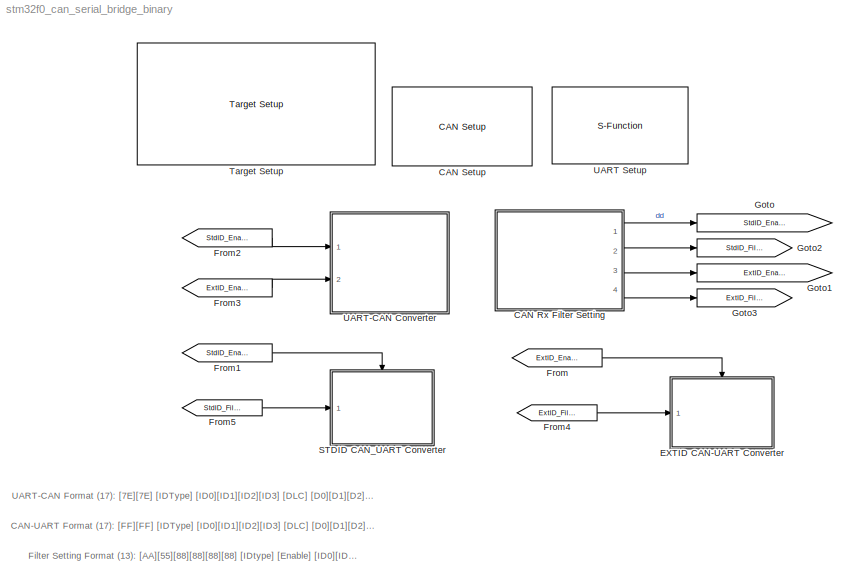
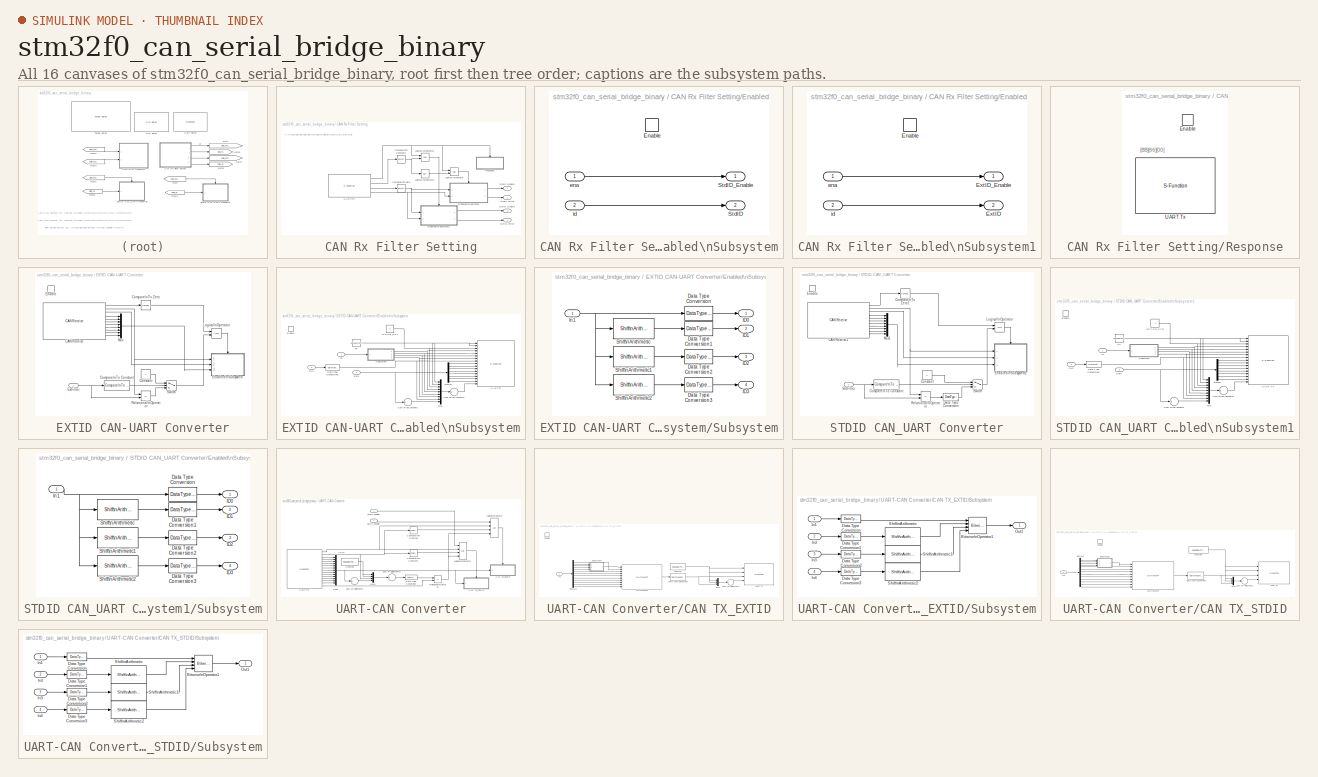
[diagram: thumbnail index - all 16 canvases of the model, root first then tree order]
MODEL stm32f0_can_serial_bridge_binary
KIND model
CONFIG PreLoadFcn = waijung.modelPreload; % Required for working with Waijung Blockset. Do not remove.
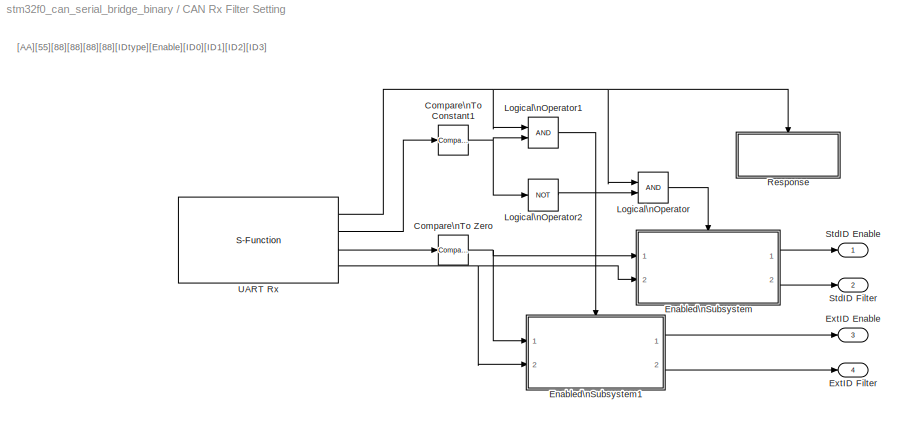
BLOCK [SubSystem] CAN Rx Filter Setting
  FunctionWithSeparateData = off
  MaskHideContents = off
  MinAlgLoopOccurrences = off
  Opaque = off
  Ports = [0, 4]
  PropExecContextOutsideSubsystem = off
  RTWSystemCode = Auto
  RequestExecContextInheritance = off
BLOCK [Reference] CAN Rx Filter Setting/Compare\nTo Constant1  REF=simulink/Logic and Bit\nOperations/Compare\nTo Constant
  FunctionWithSeparateData = off
  LogicOutDataTypeMode = uint8
  Ports = [1, 1]
  RTWMemSecDataConstants = Inherit from model
  RTWMemSecDataInternal = Inherit from model
  RTWMemSecDataParameters = Inherit from model
  RTWMemSecFuncExecute = Inherit from model
  RTWMemSecFuncInitTerm = Inherit from model
  ShowPortLabels = FromPortIcon
  SourceBlock = simulink/Logic and Bit\nOperations/Compare\nTo Constant
  SourceType = Compare To Constant
  SystemSampleTime = -1
  ZeroCross = off
  const = 0
  relop = ==
BLOCK [Reference] CAN Rx Filter Setting/Compare\nTo Zero  REF=simulink/Logic and Bit\nOperations/Compare\nTo Zero
  FunctionWithSeparateData = off
  LogicOutDataTypeMode = uint8
  Ports = [1, 1]
  RTWMemSecDataConstants = Inherit from model
  RTWMemSecDataInternal = Inherit from model
  RTWMemSecDataParameters = Inherit from model
  RTWMemSecFuncExecute = Inherit from model
  RTWMemSecFuncInitTerm = Inherit from model
  ShowPortLabels = FromPortIcon
  SourceBlock = simulink/Logic and Bit\nOperations/Compare\nTo Zero
  SourceType = Compare To Zero
  SystemSampleTime = -1
  ZeroCross = off
  relop = ~=
BLOCK [SubSystem] CAN Rx Filter Setting/Enabled\nSubsystem
  FunctionWithSeparateData = off
  MaskHideContents = off
  MinAlgLoopOccurrences = off
  Opaque = off
  Ports = [2, 2, 1]
  PropExecContextOutsideSubsystem = off
  RTWSystemCode = Auto
  RequestExecContextInheritance = off
  TreatAsAtomicUnit = on
BLOCK [EnablePort] CAN Rx Filter Setting/Enabled\nSubsystem/Enable
  Ports = []
BLOCK [Outport] CAN Rx Filter Setting/Enabled\nSubsystem/StdID
  IconDisplay = Port number
  InitialOutput = 2^32-1
  OutDataType = fixdt(1, 16)
  OutScaling = 2^0
  Port = 2
BLOCK [Outport] CAN Rx Filter Setting/Enabled\nSubsystem/StdID_Enable
  IconDisplay = Port number
  InitialOutput = 0
  OutDataType = fixdt(1, 16)
  OutScaling = 2^0
BLOCK [Inport] CAN Rx Filter Setting/Enabled\nSubsystem/ena
  IconDisplay = Port number
  OutDataType = fixdt(1, 16)
  OutScaling = 2^0
BLOCK [Inport] CAN Rx Filter Setting/Enabled\nSubsystem/id
  IconDisplay = Port number
  OutDataType = fixdt(1, 16)
  OutScaling = 2^0
  Port = 2
BLOCK [SubSystem] CAN Rx Filter Setting/Enabled\nSubsystem1
  FunctionWithSeparateData = off
  MaskHideContents = off
  MinAlgLoopOccurrences = off
  Opaque = off
  Ports = [2, 2, 1]
  PropExecContextOutsideSubsystem = off
  RTWSystemCode = Auto
  RequestExecContextInheritance = off
  TreatAsAtomicUnit = on
BLOCK [EnablePort] CAN Rx Filter Setting/Enabled\nSubsystem1/Enable
  Ports = []
BLOCK [Outport] CAN Rx Filter Setting/Enabled\nSubsystem1/ExtID
  IconDisplay = Port number
  InitialOutput = 2^32-1
  OutDataType = fixdt(1, 16)
  OutScaling = 2^0
  Port = 2
BLOCK [Outport] CAN Rx Filter Setting/Enabled\nSubsystem1/ExtID_Enable
  IconDisplay = Port number
  InitialOutput = 0
  OutDataType = fixdt(1, 16)
  OutScaling = 2^0
BLOCK [Inport] CAN Rx Filter Setting/Enabled\nSubsystem1/ena
  IconDisplay = Port number
  OutDataType = fixdt(1, 16)
  OutScaling = 2^0
BLOCK [Inport] CAN Rx Filter Setting/Enabled\nSubsystem1/id
  IconDisplay = Port number
  OutDataType = fixdt(1, 16)
  OutScaling = 2^0
  Port = 2
BLOCK [Outport] CAN Rx Filter Setting/ExtID Enable
  IconDisplay = Port number
  OutDataType = fixdt(1, 16)
  OutScaling = 2^0
  Port = 3
BLOCK [Outport] CAN Rx Filter Setting/ExtID Filter
  IconDisplay = Port number
  OutDataType = fixdt(1, 16)
  OutScaling = 2^0
  Port = 4
BLOCK [Logic] CAN Rx Filter Setting/Logical\nOperator
  AllPortsSameDT = off
  LogicDataType = fixdt(0, 8)
  OutDataTypeMode = boolean
  OutDataTypeStr = boolean
  Ports = [2, 1]
BLOCK [Logic] CAN Rx Filter Setting/Logical\nOperator1
  AllPortsSameDT = off
  LogicDataType = fixdt(0, 8)
  OutDataTypeMode = boolean
  OutDataTypeStr = boolean
  Ports = [2, 1]
BLOCK [Logic] CAN Rx Filter Setting/Logical\nOperator2
  AllPortsSameDT = off
  LogicDataType = fixdt(0, 8)
  Operator = NOT
  OutDataTypeMode = boolean
  OutDataTypeStr = boolean
  Ports = [1, 1]
BLOCK [SubSystem] CAN Rx Filter Setting/Response
  FunctionWithSeparateData = off
  MaskHideContents = off
  MinAlgLoopOccurrences = off
  Opaque = off
  Ports = [0, 0, 1]
  PropExecContextOutsideSubsystem = off
  RTWSystemCode = Auto
  RequestExecContextInheritance = off
  TreatAsAtomicUnit = on
BLOCK [EnablePort] CAN Rx Filter Setting/Response/Enable
  Ports = []
BLOCK [S-Function] CAN Rx Filter Setting/Response/UART Tx
  EnableBusSupport = off
  FunctionName = stm32f0_uart
  MaskCallbackString = stm32f0_uart_callback('conf');|stm32f0_uart_callback('uartmodule');|||||||stm32f0_uart_callback('flowcontrol');|||stm32f0_uart_callback('advanceoptions');|||stm32f0_uart_callback('conf');|stm32f0_uart_callback('conf');|stm32f0_uart_callback('binheader');|stm32f0_uart_callback('binterminator');|||||||||stm32f0_uart_callback('asciiformat');|||stm32f0_uart_callback('storagename');|||stm32f0_uart_call...<+176ch>  <repeated x8 — deduplicated; at blocks: UART Tx, UART Rx, UART Setup>
  MaskDescription = UART Module\n - Select module corresponding to \"UART Setup\" block.\nTransfer\n - Blocking: after write DMA buffer, the block wait until buffer empty.\n - Non-Blocking: the block will not wait for buffer empty.\nPacket mode:\n - Ascii: sending data is ascii, Ascii format + End of packet.\n - Binary: sending data is binary format, Header + Data + Terminator\n - String Buffer: Volatile Data Storage...<+256ch>  <repeated x5 — deduplicated; at blocks: UART Tx>
  MaskDisplay = text(0.95, 0.5, 'Module: USART1_Tx\\nPacket: Binary\\nTransfer: Blocking\\nTs (sec): 0.001','ver','middle','hor','right');
  MaskEnableString = on,on,on,on,on,on,on,on,on,off,off,on,on,on,on,on,on,on,on,on,on,on,on,on,on,on,on,on,on,on,on,on,on,on,on,on,on,off,on,on,on,on,on,on,on,on,on,on,on,on
  MaskHelp = web(fullfile(waijungdocroot,'stm32f0_uart_tx.htm'), '-browser')
  MaskIconFrame = on
  MaskIconOpaque = on
  MaskIconRotate = none
  MaskIconUnits = normalized
  MaskInitialization = stm32f0_uart_callback('init');
  MaskPortRotate = default
  MaskPromptString = Configuration|UART Module|Baud rate (bps)|Data bits|Parity|Stop bit|Tx pin|Rx pin|Hardware flow control|HW Flow control, CTS Pin|HW Flow control, RTS Pin|Advance options|Rx buffer size (bytes)|Tx buffer size (bytes)|Transfer|Packet mode|Binary header (example: '7E 7E')|Binary terminator (example: '03 03')|Number of data port, type DOUBLE|Number of data port, type SINGLE|Number of data port, type I...<+631ch>  <repeated x8 — deduplicated; at blocks: UART Tx, UART Rx, UART Setup>
  MaskSelfModifiable = on
  MaskStyleString = popup(Setup|Tx|Rx),popup(1|2|3|4),edit,popup(8),popup(No|Odd|Even),popup(0.5|1|1.5|2),popup(Not used|A9|B6),popup(Not used|A10|B7),popup(None|RTS|CTS|RTS/CTS),popup(Not used|A11),popup(Not used|A12),checkbox,popup(16|32|64|128|256|512),popup(16|32|64|128|256|512),popup(Blocking|Non-Blocking),popup(Ascii|Binary|String Buffer),edit,edit,edit,edit,edit,edit,edit,edit,edit,edit,edit,popup(CR (0x0D - \...<+259ch>  <repeated x8 — deduplicated; at blocks: UART Tx, UART Rx, UART Setup>
  MaskTabNameString = ,,,,,,,,,,,,,,,,,,,,,,,,,,,,,,,,,,,,,,,,,,,,,,,,,
  MaskToolTipString = on,on,on,on,on,on,on,on,on,on,on,on,on,on,on,on,on,on,on,on,on,on,on,on,on,on,on,on,on,on,on,on,on,on,on,on,on,on,on,on,on,on,on,on,on,on,on,on,on,on
  MaskTunableValueString = off,off,off,off,off,off,off,off,off,off,off,off,off,off,off,off,off,off,off,off,off,off,off,off,off,off,off,off,off,off,off,off,off,off,off,off,off,off,off,off,off,off,off,off,off,off,off,off,off,off  <repeated x8 — deduplicated; at blocks: UART Tx, UART Rx, UART Setup>
  MaskType = stm32f0_uart
  MaskValueString = Tx|1|115200|8|No|1|A9|A10|None|Not used|Not used|off|64|64|Blocking|Binary|'BB 66 00'|''|0|0|0|0|0|0|0|0|'%u: CODE: %u'|CR (0x0D - \"\\r\")|CRLF (0x0D 0x0A - \"<path>")|<empty>|||inf|off|de|fff,ff,sdfsd|0|CANRxFilterSettingResponseUARTTx|[]|[]|{}|[]|[]|{}|0|[\"1\", \"1\", \"A\", \"9\", \"1\", \"A\", \"10\", \"0\", \"*\", \"*\", \"0\", \"*\", \"*\", \"1\", \"1\", \"\", \"\", \"115200\", \"8\", \"N...<+115ch>
  MaskVarAliasString = ,,,,,,,,,,,,,,,,,,,,,,,,,,,,,,,,,,,,,,,,,,,,,,,,,
  MaskVariables = conf=&1;uartmodule=&2;baudrate=@3;databits=@4;parity=&5;stopbit=&6;remaptxpin=&7;remaprxpin=&8;flowcontrol=&9;remapctspin=&10;remaprtspin=&11;advanceoptions=@12;rxbuffersize=@13;txbuffersize=@14;transfer=&15;packetmode=&16;binheader=&17;binterminator=&18;porttype_double=@19;porttype_single=@20;porttype_int8=@21;porttype_uint8=@22;porttype_int16=@23;porttype_uint16=@24;porttype_int32=@25;porttype_u...<+445ch>  <repeated x8 — deduplicated; at blocks: UART Tx, UART Rx, UART Setup>
  MaskVisibilityString = off,on,off,off,off,off,off,off,off,off,off,off,off,off,on,on,on,on,on,on,on,on,on,on,on,on,off,off,off,off,off,off,on,on,off,off,off,off,off,off,off,off,off,off,off,off,off,off,off,off  <repeated x6 — deduplicated; at blocks: UART Tx, UART Rx>
  Parameters = conf,inputporttype,inputportwidth,outputporttype,outputportwidth,asciiheader,optionstring,headerstring,terminatorstring,asciidatatypestring,sampletime,blockid
  Ports = []
BLOCK [Outport] CAN Rx Filter Setting/StdID Enable
  IconDisplay = Port number
  OutDataType = fixdt(1, 16)
  OutScaling = 2^0
BLOCK [Outport] CAN Rx Filter Setting/StdID Filter
  IconDisplay = Port number
  OutDataType = fixdt(1, 16)
  OutScaling = 2^0
  Port = 2
BLOCK [S-Function] CAN Rx Filter Setting/UART Rx
  EnableBusSupport = off
  FunctionName = stm32f0_uart
  MaskDescription = UART Module\n - Select module corresponding to \"UART Setup\" block.\nTransfer\n - Blocking: the block wait until data receiving is ready.\n - Non-Blocking: if data receiving is ready, the block return non-zero to READY port otherwise return 0.\nPacket mode:\n - Ascii: receiving data is ascii, Ascii format + End of packet.\n - Binary: receiving data is binary format, Header + Data + Terminator\n -...<+199ch>
  MaskDisplay = text(0.05, 0.5, 'Module: USART1_Rx\\nPacket: Binary\\nTransfer: Non-Blocking\\nTs (sec): 0.001','ver','middle','hor','left'); port_label('output', 1,'READY'); port_label('output', 2,'IDtype'); port_label('output', 3,'Enable'); port_label('output', 4,'ID');
  MaskEnableString = on,on,on,on,on,on,on,on,on,off,off,on,on,on,on,on,on,on,on,on,on,on,on,on,on,on,on,on,on,on,on,on,on,on,on,on,on,off,on,on,on,on,on,on,on,on,on,on,on,on
  MaskHelp = web(fullfile(waijungdocroot,'stm32f0_uart_rx.htm'), '-browser')
  MaskIconFrame = on
  MaskIconOpaque = on
  MaskIconRotate = none
  MaskIconUnits = normalized
  MaskInitialization = stm32f0_uart_callback('init');
  MaskPortRotate = default
  MaskSelfModifiable = on
  MaskTabNameString = ,,,,,,,,,,,,,,,,,,,,,,,,,,,,,,,,,,,,,,,,,,,,,,,,,
  MaskToolTipString = on,on,on,on,on,on,on,on,on,on,on,on,on,on,on,on,on,on,on,on,on,on,on,on,on,on,on,on,on,on,on,on,on,on,on,on,on,on,on,on,on,on,on,on,on,on,on,on,on,on
  MaskType = stm32f0_uart
  MaskValueString = Rx|1|115200|8|No|1|A9|A10|None|Not used|Not used|off|64|64|Non-Blocking|Binary|'AA 55 88 88 88 88'|''|0|0|0|2|0|0|0|1|'cantx,extid=%u,dlc=%x,data=%x,%x,%x,%x,%x,%x,%x,%x'|CRLF (0x0D 0x0A - \"<path>")|LF (0x0A - \"\\n\")|<empty>|||inf|on|de|IDtype,Enable,ID|0|CANRxFilterSettingUARTRx|[]|[]|{}|[3 3 3 7]|[]|{'READY' 'IDtype' 'Enable' 'ID'}|0|[\"1\", \"1\", \"A\", \"9\", \"1\", \"A\", \"10\", \"0\", ...<+227ch>
  MaskVarAliasString = ,,,,,,,,,,,,,,,,,,,,,,,,,,,,,,,,,,,,,,,,,,,,,,,,,
  MaskVisibilityString = off,on,off,off,off,off,off,off,off,off,off,off,off,off,on,on,on,on,on,on,on,on,on,on,on,on,off,off,off,off,off,off,on,on,off,on,off,off,off,off,off,off,off,off,off,off,off,off,off,off
  Parameters = conf,inputporttype,inputportwidth,outputporttype,outputportwidth,asciiheader,optionstring,headerstring,terminatorstring,asciidatatypestring,sampletime,blockid
  Ports = [0, 4]
BLOCK [Reference] CAN Setup  REF=stm32f0_can_lib/CAN Setup
  Ports = []
  SourceBlock = stm32f0_can_lib/CAN Setup
  SourceType = stm32f0_can
  advance = on
  autoretransmission = Enable
  bitrate = 250000
  bitrate_select = 250000
  blockid = CANSetup
  brp = 8
  bs1 = 15tq
  bs2 = 8tq
  canmodule = 1
  compat = 0
  conf = Setup
  confstr = [\"250000\",\"8\",\"B\",\"9\",\"B\",\"8\",\"1tq\",\"15tq\",\"8tq\",\"DISABLE\"]
  inputarray = []
  inputlabelarray = {}
  lastmodule = 1
  outputarray = []
  outputlabelarray = {}
  presc = 8
  remaprxpin = B8
  remaptxpin = B9
  rxpinstr = 8
  rxportstr = B
  sampletime = -1
  sampletimestr = 0.001
  sjw = 1tq
  timingconf = Prescaler
  tq = 1.6667e-007
  txpinstr = 9
  txportstr = B
BLOCK [SubSystem] EXTID CAN-UART Converter
  FunctionWithSeparateData = off
  MaskHideContents = off
  MinAlgLoopOccurrences = off
  Opaque = off
  Ports = [1, 0, 1]
  PropExecContextOutsideSubsystem = off
  RTWSystemCode = Auto
  RequestExecContextInheritance = off
BLOCK [Reference] EXTID CAN-UART Converter/CAN Receive  REF=stm32f0_can_lib/CAN Receive
  Ports = [0, 11]
  SourceBlock = stm32f0_can_lib/CAN Receive
  SourceType = stm32f0_can
  blockid = EXTIDCANUARTConverterCANReceive
  buffersize = 8
  canmodule = 1
  compat = 0
  conf = Rx
  confstr = [\"Extended\",\"Mask\",\"0\",\"0\",\"on\",\"uint8\",\"uint8\",\"uint8\",\"uint8\",\"uint8\",\"uint8\",\"uint8\",\"uint8\",\"8\",\"0\",\"4\",\"0\",\"4\"]
  data0type = uint8
  data1type = uint8
  data2type = uint8
  data3type = uint8
  data4type = uint8
  data5type = uint8
  data6type = uint8
  data7type = uint8
  datatype = single
  enableisr = off
  filtertype = Mask
  id = 0
  idmask = 0
  idtype = Extended
  inputarray = []
  inputlabelarray = {}
  outputarray = [ 5, 7, 3, 3, 3, 3, 3, 3, 3, 3, 3]
  outputlabelarray = { 'Msg Pending','ID','DLC', 'D0 (uint8)', 'D1 (uint8)', 'D2 (uint8)', 'D3 (uint8)', 'D4 (uint8)', 'D5 (uint8)', 'D6 (uint8)', 'D7 (uint8)' }
  sampletime = inf
  sampletimestr = 0.001
  usedlc = on
BLOCK [Reference] EXTID CAN-UART Converter/Compare\nTo Constant  REF=simulink/Logic and Bit\nOperations/Compare\nTo Constant
  FunctionWithSeparateData = off
  LogicOutDataTypeMode = uint8
  Ports = [1, 1]
  RTWMemSecDataConstants = Inherit from model
  RTWMemSecDataInternal = Inherit from model
  RTWMemSecDataParameters = Inherit from model
  RTWMemSecFuncExecute = Inherit from model
  RTWMemSecFuncInitTerm = Inherit from model
  ShowPortLabels = FromPortIcon
  SourceBlock = simulink/Logic and Bit\nOperations/Compare\nTo Constant
  SourceType = Compare To Constant
  SystemSampleTime = -1
  ZeroCross = off
  const = 2^32-1
  relop = ==
BLOCK [Reference] EXTID CAN-UART Converter/Compare\nTo Zero  REF=simulink/Logic and Bit\nOperations/Compare\nTo Zero
  FunctionWithSeparateData = off
  LogicOutDataTypeMode = uint8
  Ports = [1, 1]
  RTWMemSecDataConstants = Inherit from model
  RTWMemSecDataInternal = Inherit from model
  RTWMemSecDataParameters = Inherit from model
  RTWMemSecFuncExecute = Inherit from model
  RTWMemSecFuncInitTerm = Inherit from model
  ShowPortLabels = FromPortIcon
  SourceBlock = simulink/Logic and Bit\nOperations/Compare\nTo Zero
  SourceType = Compare To Zero
  SystemSampleTime = -1
  ZeroCross = off
  relop = ~=
BLOCK [Constant] EXTID CAN-UART Converter/Constant
  OutDataType = fixdt(1, 16)
  OutDataTypeMode = uint8
  OutDataTypeStr = uint8
  OutScaling = 2^0
BLOCK [EnablePort] EXTID CAN-UART Converter/Enable
  Ports = []
BLOCK [SubSystem] EXTID CAN-UART Converter/Enabled\nSubsystem
  FunctionWithSeparateData = off
  MaskHideContents = off
  MinAlgLoopOccurrences = off
  Opaque = off
  Ports = [3, 0, 1]
  PropExecContextOutsideSubsystem = off
  RTWSystemCode = Auto
  RequestExecContextInheritance = off
  TreatAsAtomicUnit = on
BLOCK [Inport] EXTID CAN-UART Converter/Enabled\nSubsystem/DLC
  IconDisplay = Port number
  OutDataType = fixdt(1, 16)
  OutScaling = 2^0
  Port = 2
BLOCK [Inport] EXTID CAN-UART Converter/Enabled\nSubsystem/Data
  IconDisplay = Port number
  OutDataType = fixdt(1, 16)
  OutScaling = 2^0
  Port = 3
BLOCK [DataTypeConversion] EXTID CAN-UART Converter/Enabled\nSubsystem/Data Type Conversion1
  OutDataType = fixdt(1, 16)
  OutScaling = 2^0
  RndMeth = Floor
  SaturateOnIntegerOverflow = off
BLOCK [Demux] EXTID CAN-UART Converter/Enabled\nSubsystem/Demux
  DisplayOption = bar
  Outputs = 8
  Ports = [1, 8]
BLOCK [EnablePort] EXTID CAN-UART Converter/Enabled\nSubsystem/Enable
  Ports = []
BLOCK [Constant] EXTID CAN-UART Converter/Enabled\nSubsystem/FF
  OutDataType = fixdt(1, 16)
  OutDataTypeMode = uint8
  OutDataTypeStr = uint8
  OutScaling = 2^0
  Value = hex2dec('FF')
BLOCK [Inport] EXTID CAN-UART Converter/Enabled\nSubsystem/ID
  IconDisplay = Port number
  OutDataType = fixdt(1, 16)
  OutScaling = 2^0
BLOCK [Constant] EXTID CAN-UART Converter/Enabled\nSubsystem/IDTYPE_EXT
  OutDataType = fixdt(1, 16)
  OutDataTypeMode = uint8
  OutDataTypeStr = uint8
  OutScaling = 2^0
  Value = 0
BLOCK [Mux] EXTID CAN-UART Converter/Enabled\nSubsystem/Mux
  DisplayOption = bar
  Inputs = 9
  Ports = [9, 1]
BLOCK [SubSystem] EXTID CAN-UART Converter/Enabled\nSubsystem/Subsystem
  FunctionWithSeparateData = off
  MaskHideContents = off
  MinAlgLoopOccurrences = off
  Opaque = off
  Ports = [1, 4]
  PropExecContextOutsideSubsystem = off
  RTWSystemCode = Auto
  RequestExecContextInheritance = off
BLOCK [DataTypeConversion] EXTID CAN-UART Converter/Enabled\nSubsystem/Subsystem/Data Type Conversion
  OutDataType = fixdt(1, 16)
  OutDataTypeMode = uint8
  OutDataTypeStr = uint8
  OutScaling = 2^0
  RndMeth = Floor
  SaturateOnIntegerOverflow = off
BLOCK [DataTypeConversion] EXTID CAN-UART Converter/Enabled\nSubsystem/Subsystem/Data Type Conversion1
  OutDataType = fixdt(1, 16)
  OutDataTypeMode = uint8
  OutDataTypeStr = uint8
  OutScaling = 2^0
  RndMeth = Floor
  SaturateOnIntegerOverflow = off
BLOCK [DataTypeConversion] EXTID CAN-UART Converter/Enabled\nSubsystem/Subsystem/Data Type Conversion2
  OutDataType = fixdt(1, 16)
  OutDataTypeMode = uint8
  OutDataTypeStr = uint8
  OutScaling = 2^0
  RndMeth = Floor
  SaturateOnIntegerOverflow = off
BLOCK [DataTypeConversion] EXTID CAN-UART Converter/Enabled\nSubsystem/Subsystem/Data Type Conversion3
  OutDataType = fixdt(1, 16)
  OutDataTypeMode = uint8
  OutDataTypeStr = uint8
  OutScaling = 2^0
  RndMeth = Floor
  SaturateOnIntegerOverflow = off
BLOCK [Outport] EXTID CAN-UART Converter/Enabled\nSubsystem/Subsystem/ID0
  IconDisplay = Port number
  OutDataType = fixdt(1, 16)
  OutScaling = 2^0
BLOCK [Outport] EXTID CAN-UART Converter/Enabled\nSubsystem/Subsystem/ID1
  IconDisplay = Port number
  OutDataType = fixdt(1, 16)
  OutScaling = 2^0
  Port = 2
BLOCK [Outport] EXTID CAN-UART Converter/Enabled\nSubsystem/Subsystem/ID2
  IconDisplay = Port number
  OutDataType = fixdt(1, 16)
  OutScaling = 2^0
  Port = 3
BLOCK [Outport] EXTID CAN-UART Converter/Enabled\nSubsystem/Subsystem/ID3
  IconDisplay = Port number
  OutDataType = fixdt(1, 16)
  OutScaling = 2^0
  Port = 4
BLOCK [Inport] EXTID CAN-UART Converter/Enabled\nSubsystem/Subsystem/In1
  IconDisplay = Port number
  OutDataType = fixdt(1, 16)
  OutScaling = 2^0
BLOCK [Reference] EXTID CAN-UART Converter/Enabled\nSubsystem/Subsystem/Shift\nArithmetic  REF=simulink/Logic and Bit\nOperations/Shift\nArithmetic
  FunctionWithSeparateData = off
  Ports = [1, 1]
  RTWMemSecDataConstants = Inherit from model
  RTWMemSecDataInternal = Inherit from model
  RTWMemSecDataParameters = Inherit from model
  RTWMemSecFuncExecute = Inherit from model
  RTWMemSecFuncInitTerm = Inherit from model
  ShowPortLabels = FromPortIcon
  SourceBlock = simulink/Logic and Bit\nOperations/Shift\nArithmetic
  SourceType = Shift Arithmetic
  SystemSampleTime = -1
  nBinPtShiftRight = 0
  nBitShiftRight = 8
BLOCK [Reference] EXTID CAN-UART Converter/Enabled\nSubsystem/Subsystem/Shift\nArithmetic1  REF=simulink/Logic and Bit\nOperations/Shift\nArithmetic
  FunctionWithSeparateData = off
  Ports = [1, 1]
  RTWMemSecDataConstants = Inherit from model
  RTWMemSecDataInternal = Inherit from model
  RTWMemSecDataParameters = Inherit from model
  RTWMemSecFuncExecute = Inherit from model
  RTWMemSecFuncInitTerm = Inherit from model
  ShowPortLabels = FromPortIcon
  SourceBlock = simulink/Logic and Bit\nOperations/Shift\nArithmetic
  SourceType = Shift Arithmetic
  SystemSampleTime = -1
  nBinPtShiftRight = 0
  nBitShiftRight = 16
BLOCK [Reference] EXTID CAN-UART Converter/Enabled\nSubsystem/Subsystem/Shift\nArithmetic2  REF=simulink/Logic and Bit\nOperations/Shift\nArithmetic
  FunctionWithSeparateData = off
  Ports = [1, 1]
  RTWMemSecDataConstants = Inherit from model
  RTWMemSecDataInternal = Inherit from model
  RTWMemSecDataParameters = Inherit from model
  RTWMemSecFuncExecute = Inherit from model
  RTWMemSecFuncInitTerm = Inherit from model
  ShowPortLabels = FromPortIcon
  SourceBlock = simulink/Logic and Bit\nOperations/Shift\nArithmetic
  SourceType = Shift Arithmetic
  SystemSampleTime = -1
  nBinPtShiftRight = 0
  nBitShiftRight = 24
BLOCK [Sum] EXTID CAN-UART Converter/Enabled\nSubsystem/Sum of\nElements
  InputSameDT = off
  Inputs = +
  OutDataType = fixdt(1, 16)
  OutDataTypeMode = Inherit via internal rule
  OutDataTypeStr = Inherit: Inherit via internal rule
  OutScaling = 2^-10
  Ports = [1, 1]
  SaturateOnIntegerOverflow = off
BLOCK [Sum] EXTID CAN-UART Converter/Enabled\nSubsystem/Sum of\nElements1
  InputSameDT = off
  Inputs = +
  OutDataType = fixdt(1, 16)
  OutDataTypeMode = Inherit via internal rule
  OutDataTypeStr = Inherit: Inherit via internal rule
  OutScaling = 2^-10
  Ports = [1, 1]
  SaturateOnIntegerOverflow = off
BLOCK [S-Function] EXTID CAN-UART Converter/Enabled\nSubsystem/UART Tx
  EnableBusSupport = off
  FunctionName = stm32f0_uart
  MaskDisplay = text(0.95, 0.5, 'Module: USART1_Tx\\nPacket: Binary\\nTransfer: Blocking\\nTs (sec): 0.001','ver','middle','hor','right'); port_label('input', 1,'uint8'); port_label('input', 2,'uint8'); port_label('input', 3,'uint8'); port_label('input', 4,'uint8'); port_label('input', 5,'uint8'); port_label('input', 6,'uint8'); port_label('input', 7,'uint8'); port_label('input', 8,'uint8'); port_label('input', 9...<+274ch>
  MaskEnableString = on,on,on,on,on,on,on,on,on,off,off,on,on,on,on,on,on,on,on,on,on,on,on,on,on,on,on,on,on,on,on,on,on,on,on,on,on,off,on,on,on,on,on,on,on,on,on,on,on,on
  MaskHelp = web(fullfile(waijungdocroot,'stm32f0_uart_tx.htm'), '-browser')
  MaskIconFrame = on
  MaskIconOpaque = on
  MaskIconRotate = none
  MaskIconUnits = normalized
  MaskInitialization = stm32f0_uart_callback('init');
  MaskPortRotate = default
  MaskSelfModifiable = on
  MaskTabNameString = ,,,,,,,,,,,,,,,,,,,,,,,,,,,,,,,,,,,,,,,,,,,,,,,,,
  MaskToolTipString = on,on,on,on,on,on,on,on,on,on,on,on,on,on,on,on,on,on,on,on,on,on,on,on,on,on,on,on,on,on,on,on,on,on,on,on,on,on,on,on,on,on,on,on,on,on,on,on,on,on
  MaskType = stm32f0_uart
  MaskValueString = Tx|1|115200|8|No|1|A9|A10|None|Not used|Not used|off|64|64|Blocking|Binary|''|''|0|0|0|17|0|0|0|0|'%u,canrx,extid=%u,dlc=%u,data=%x,%x,%x,%x,%x,%x,%x,%x'|CR (0x0D - \"\\r\")|CRLF (0x0D 0x0A - \"<path>")|<empty>|||inf|off|de|fff,ff,sdfsd|0|EXTIDCANUARTConverterEnabledSubsystemUARTTx|[3 3 3 3 3 3 3 3 3 3 3 3 3 3 3 3 3]|[]|{'uint8' 'uint8' 'uint8' 'uint8' 'uint8' 'uint8' 'uint8' 'uint8' 'uint8' 'uin...<+307ch>
  MaskVarAliasString = ,,,,,,,,,,,,,,,,,,,,,,,,,,,,,,,,,,,,,,,,,,,,,,,,,
  Parameters = conf,inputporttype,inputportwidth,outputporttype,outputportwidth,asciiheader,optionstring,headerstring,terminatorstring,asciidatatypestring,sampletime,blockid
  Ports = [17]
BLOCK [Inport] EXTID CAN-UART Converter/ExtFilter
  IconDisplay = Port number
  OutDataType = fixdt(1, 16)
  OutScaling = 2^0
BLOCK [Logic] EXTID CAN-UART Converter/Logical\nOperator
  AllPortsSameDT = off
  LogicDataType = fixdt(0, 8)
  OutDataTypeMode = boolean
  OutDataTypeStr = boolean
  Ports = [2, 1]
BLOCK [Mux] EXTID CAN-UART Converter/Mux
  DisplayOption = bar
  Inputs = 8
  Ports = [8, 1]
BLOCK [RelationalOperator] EXTID CAN-UART Converter/Relational\nOperator
  InputSameDT = off
  LogicDataType = fixdt(0, 8)
  LogicOutDataTypeMode = boolean
  Operator = ==
  OutDataTypeStr = boolean
BLOCK [Switch] EXTID CAN-UART Converter/Switch
  Criteria = u2 ~= 0
  InputSameDT = off
  OutDataType = fixdt(1, 16)
  OutScaling = 2^0
  SaturateOnIntegerOverflow = off
BLOCK [From] From
  GotoTag = ExtID_Enable
BLOCK [From] From1
  GotoTag = StdID_Enable
BLOCK [From] From2
  GotoTag = StdID_Enable
BLOCK [From] From3
  GotoTag = ExtID_Enable
BLOCK [From] From4
  GotoTag = ExtID_Filter
BLOCK [From] From5
  GotoTag = StdID_Filter
BLOCK [Goto] Goto
  GotoTag = StdID_Enable
  TagVisibility = local
BLOCK [Goto] Goto1
  GotoTag = ExtID_Enable
  TagVisibility = local
BLOCK [Goto] Goto2
  GotoTag = StdID_Filter
  TagVisibility = local
BLOCK [Goto] Goto3
  GotoTag = ExtID_Filter
  TagVisibility = local
BLOCK [SubSystem] STDID CAN_UART Converter
  FunctionWithSeparateData = off
  MaskHideContents = off
  MinAlgLoopOccurrences = off
  Opaque = off
  Ports = [1, 0, 1]
  PropExecContextOutsideSubsystem = off
  RTWSystemCode = Auto
  RequestExecContextInheritance = off
BLOCK [Reference] STDID CAN_UART Converter/CAN Receive1  REF=stm32f0_can_lib/CAN Receive
  Ports = [0, 11]
  SourceBlock = stm32f0_can_lib/CAN Receive
  SourceType = stm32f0_can
  blockid = STDIDCAN_UARTConverterCANReceive1
  buffersize = 8
  canmodule = 1
  compat = 0
  conf = Rx
  confstr = [\"Standard\",\"Mask\",\"0\",\"0\",\"on\",\"uint8\",\"uint8\",\"uint8\",\"uint8\",\"uint8\",\"uint8\",\"uint8\",\"uint8\",\"8\",\"0\",\"0\",\"0\",\"4\"]
  data0type = uint8
  data1type = uint8
  data2type = uint8
  data3type = uint8
  data4type = uint8
  data5type = uint8
  data6type = uint8
  data7type = uint8
  datatype = single
  enableisr = off
  filtertype = Mask
  id = 0
  idmask = 0
  idtype = Standard
  inputarray = []
  inputlabelarray = {}
  outputarray = [ 5, 7, 3, 3, 3, 3, 3, 3, 3, 3, 3]
  outputlabelarray = { 'Msg Pending','ID','DLC', 'D0 (uint8)', 'D1 (uint8)', 'D2 (uint8)', 'D3 (uint8)', 'D4 (uint8)', 'D5 (uint8)', 'D6 (uint8)', 'D7 (uint8)' }
  sampletime = inf
  sampletimestr = 0.001
  usedlc = on
BLOCK [Reference] STDID CAN_UART Converter/Compare\nTo Constant  REF=simulink/Logic and Bit\nOperations/Compare\nTo Constant
  FunctionWithSeparateData = off
  LogicOutDataTypeMode = uint8
  Ports = [1, 1]
  RTWMemSecDataConstants = Inherit from model
  RTWMemSecDataInternal = Inherit from model
  RTWMemSecDataParameters = Inherit from model
  RTWMemSecFuncExecute = Inherit from model
  RTWMemSecFuncInitTerm = Inherit from model
  ShowPortLabels = FromPortIcon
  SourceBlock = simulink/Logic and Bit\nOperations/Compare\nTo Constant
  SourceType = Compare To Constant
  SystemSampleTime = -1
  ZeroCross = off
  const = 2^32-1
  relop = ==
BLOCK [Reference] STDID CAN_UART Converter/Compare\nTo Zero1  REF=simulink/Logic and Bit\nOperations/Compare\nTo Zero
  FunctionWithSeparateData = off
  LogicOutDataTypeMode = uint8
  Ports = [1, 1]
  RTWMemSecDataConstants = Inherit from model
  RTWMemSecDataInternal = Inherit from model
  RTWMemSecDataParameters = Inherit from model
  RTWMemSecFuncExecute = Inherit from model
  RTWMemSecFuncInitTerm = Inherit from model
  ShowPortLabels = FromPortIcon
  SourceBlock = simulink/Logic and Bit\nOperations/Compare\nTo Zero
  SourceType = Compare To Zero
  SystemSampleTime = -1
  ZeroCross = off
  relop = ~=
BLOCK [Constant] STDID CAN_UART Converter/Constant
  OutDataType = fixdt(1, 16)
  OutDataTypeMode = uint8
  OutDataTypeStr = uint8
  OutScaling = 2^0
BLOCK [DataTypeConversion] STDID CAN_UART Converter/Data Type Conversion
  OutDataType = fixdt(1, 16)
  OutDataTypeMode = uint8
  OutDataTypeStr = uint8
  OutScaling = 2^0
  RndMeth = Floor
  SaturateOnIntegerOverflow = off
BLOCK [EnablePort] STDID CAN_UART Converter/Enable
  Ports = []
BLOCK [SubSystem] STDID CAN_UART Converter/Enabled\nSubsystem1
  FunctionWithSeparateData = off
  MaskHideContents = off
  MinAlgLoopOccurrences = off
  Opaque = off
  Ports = [3, 0, 1]
  PropExecContextOutsideSubsystem = off
  RTWSystemCode = Auto
  RequestExecContextInheritance = off
  TreatAsAtomicUnit = on
BLOCK [Inport] STDID CAN_UART Converter/Enabled\nSubsystem1/DLC
  IconDisplay = Port number
  OutDataType = fixdt(1, 16)
  OutScaling = 2^0
  Port = 2
BLOCK [Inport] STDID CAN_UART Converter/Enabled\nSubsystem1/Data
  IconDisplay = Port number
  OutDataType = fixdt(1, 16)
  OutScaling = 2^0
  Port = 3
BLOCK [DataTypeConversion] STDID CAN_UART Converter/Enabled\nSubsystem1/Data Type Conversion1
  OutDataType = fixdt(1, 16)
  OutScaling = 2^0
  RndMeth = Floor
  SaturateOnIntegerOverflow = off
BLOCK [Demux] STDID CAN_UART Converter/Enabled\nSubsystem1/Demux
  DisplayOption = bar
  Outputs = 8
  Ports = [1, 8]
BLOCK [EnablePort] STDID CAN_UART Converter/Enabled\nSubsystem1/Enable
  Ports = []
BLOCK [Constant] STDID CAN_UART Converter/Enabled\nSubsystem1/FF
  OutDataType = fixdt(1, 16)
  OutDataTypeMode = uint8
  OutDataTypeStr = uint8
  OutScaling = 2^0
  Value = hex2dec('FF')
BLOCK [Inport] STDID CAN_UART Converter/Enabled\nSubsystem1/ID
  IconDisplay = Port number
  OutDataType = fixdt(1, 16)
  OutScaling = 2^0
BLOCK [Constant] STDID CAN_UART Converter/Enabled\nSubsystem1/IDTYPE_STD
  OutDataType = fixdt(1, 16)
  OutDataTypeMode = uint8
  OutDataTypeStr = uint8
  OutScaling = 2^0
BLOCK [Mux] STDID CAN_UART Converter/Enabled\nSubsystem1/Mux
  DisplayOption = bar
  Inputs = 9
  Ports = [9, 1]
BLOCK [SubSystem] STDID CAN_UART Converter/Enabled\nSubsystem1/Subsystem
  FunctionWithSeparateData = off
  MaskHideContents = off
  MinAlgLoopOccurrences = off
  Opaque = off
  Ports = [1, 4]
  PropExecContextOutsideSubsystem = off
  RTWSystemCode = Auto
  RequestExecContextInheritance = off
BLOCK [DataTypeConversion] STDID CAN_UART Converter/Enabled\nSubsystem1/Subsystem/Data Type Conversion
  OutDataType = fixdt(1, 16)
  OutDataTypeMode = uint8
  OutDataTypeStr = uint8
  OutScaling = 2^0
  RndMeth = Floor
  SaturateOnIntegerOverflow = off
BLOCK [DataTypeConversion] STDID CAN_UART Converter/Enabled\nSubsystem1/Subsystem/Data Type Conversion1
  OutDataType = fixdt(1, 16)
  OutDataTypeMode = uint8
  OutDataTypeStr = uint8
  OutScaling = 2^0
  RndMeth = Floor
  SaturateOnIntegerOverflow = off
BLOCK [DataTypeConversion] STDID CAN_UART Converter/Enabled\nSubsystem1/Subsystem/Data Type Conversion2
  OutDataType = fixdt(1, 16)
  OutDataTypeMode = uint8
  OutDataTypeStr = uint8
  OutScaling = 2^0
  RndMeth = Floor
  SaturateOnIntegerOverflow = off
BLOCK [DataTypeConversion] STDID CAN_UART Converter/Enabled\nSubsystem1/Subsystem/Data Type Conversion3
  OutDataType = fixdt(1, 16)
  OutDataTypeMode = uint8
  OutDataTypeStr = uint8
  OutScaling = 2^0
  RndMeth = Floor
  SaturateOnIntegerOverflow = off
BLOCK [Outport] STDID CAN_UART Converter/Enabled\nSubsystem1/Subsystem/ID0
  IconDisplay = Port number
  OutDataType = fixdt(1, 16)
  OutScaling = 2^0
BLOCK [Outport] STDID CAN_UART Converter/Enabled\nSubsystem1/Subsystem/ID1
  IconDisplay = Port number
  OutDataType = fixdt(1, 16)
  OutScaling = 2^0
  Port = 2
BLOCK [Outport] STDID CAN_UART Converter/Enabled\nSubsystem1/Subsystem/ID2
  IconDisplay = Port number
  OutDataType = fixdt(1, 16)
  OutScaling = 2^0
  Port = 3
BLOCK [Outport] STDID CAN_UART Converter/Enabled\nSubsystem1/Subsystem/ID3
  IconDisplay = Port number
  OutDataType = fixdt(1, 16)
  OutScaling = 2^0
  Port = 4
BLOCK [Inport] STDID CAN_UART Converter/Enabled\nSubsystem1/Subsystem/In1
  IconDisplay = Port number
  OutDataType = fixdt(1, 16)
  OutScaling = 2^0
BLOCK [Reference] STDID CAN_UART Converter/Enabled\nSubsystem1/Subsystem/Shift\nArithmetic  REF=simulink/Logic and Bit\nOperations/Shift\nArithmetic
  FunctionWithSeparateData = off
  Ports = [1, 1]
  RTWMemSecDataConstants = Inherit from model
  RTWMemSecDataInternal = Inherit from model
  RTWMemSecDataParameters = Inherit from model
  RTWMemSecFuncExecute = Inherit from model
  RTWMemSecFuncInitTerm = Inherit from model
  ShowPortLabels = FromPortIcon
  SourceBlock = simulink/Logic and Bit\nOperations/Shift\nArithmetic
  SourceType = Shift Arithmetic
  SystemSampleTime = -1
  nBinPtShiftRight = 0
  nBitShiftRight = 8
BLOCK [Reference] STDID CAN_UART Converter/Enabled\nSubsystem1/Subsystem/Shift\nArithmetic1  REF=simulink/Logic and Bit\nOperations/Shift\nArithmetic
  FunctionWithSeparateData = off
  Ports = [1, 1]
  RTWMemSecDataConstants = Inherit from model
  RTWMemSecDataInternal = Inherit from model
  RTWMemSecDataParameters = Inherit from model
  RTWMemSecFuncExecute = Inherit from model
  RTWMemSecFuncInitTerm = Inherit from model
  ShowPortLabels = FromPortIcon
  SourceBlock = simulink/Logic and Bit\nOperations/Shift\nArithmetic
  SourceType = Shift Arithmetic
  SystemSampleTime = -1
  nBinPtShiftRight = 0
  nBitShiftRight = 16
BLOCK [Reference] STDID CAN_UART Converter/Enabled\nSubsystem1/Subsystem/Shift\nArithmetic2  REF=simulink/Logic and Bit\nOperations/Shift\nArithmetic
  FunctionWithSeparateData = off
  Ports = [1, 1]
  RTWMemSecDataConstants = Inherit from model
  RTWMemSecDataInternal = Inherit from model
  RTWMemSecDataParameters = Inherit from model
  RTWMemSecFuncExecute = Inherit from model
  RTWMemSecFuncInitTerm = Inherit from model
  ShowPortLabels = FromPortIcon
  SourceBlock = simulink/Logic and Bit\nOperations/Shift\nArithmetic
  SourceType = Shift Arithmetic
  SystemSampleTime = -1
  nBinPtShiftRight = 0
  nBitShiftRight = 24
BLOCK [Sum] STDID CAN_UART Converter/Enabled\nSubsystem1/Sum of\nElements
  InputSameDT = off
  Inputs = +
  OutDataType = fixdt(1, 16)
  OutDataTypeMode = Inherit via internal rule
  OutDataTypeStr = Inherit: Inherit via internal rule
  OutScaling = 2^-10
  Ports = [1, 1]
  SaturateOnIntegerOverflow = off
BLOCK [Sum] STDID CAN_UART Converter/Enabled\nSubsystem1/Sum of\nElements1
  InputSameDT = off
  Inputs = +
  OutDataType = fixdt(1, 16)
  OutDataTypeMode = Inherit via internal rule
  OutDataTypeStr = Inherit: Inherit via internal rule
  OutScaling = 2^-10
  Ports = [1, 1]
  SaturateOnIntegerOverflow = off
BLOCK [S-Function] STDID CAN_UART Converter/Enabled\nSubsystem1/UART Tx
  EnableBusSupport = off
  FunctionName = stm32f0_uart
  MaskDisplay = text(0.95, 0.5, 'Module: USART1_Tx\\nPacket: Binary\\nTransfer: Blocking\\nTs (sec): 0.001','ver','middle','hor','right'); port_label('input', 1,'uint8'); port_label('input', 2,'uint8'); port_label('input', 3,'uint8'); port_label('input', 4,'uint8'); port_label('input', 5,'uint8'); port_label('input', 6,'uint8'); port_label('input', 7,'uint8'); port_label('input', 8,'uint8'); port_label('input', 9...<+274ch>
  MaskEnableString = on,on,on,on,on,on,on,on,on,off,off,on,on,on,on,on,on,on,on,on,on,on,on,on,on,on,on,on,on,on,on,on,on,on,on,on,on,off,on,on,on,on,on,on,on,on,on,on,on,on
  MaskHelp = web(fullfile(waijungdocroot,'stm32f0_uart_tx.htm'), '-browser')
  MaskIconFrame = on
  MaskIconOpaque = on
  MaskIconRotate = none
  MaskIconUnits = normalized
  MaskInitialization = stm32f0_uart_callback('init');
  MaskPortRotate = default
  MaskSelfModifiable = on
  MaskTabNameString = ,,,,,,,,,,,,,,,,,,,,,,,,,,,,,,,,,,,,,,,,,,,,,,,,,
  MaskToolTipString = on,on,on,on,on,on,on,on,on,on,on,on,on,on,on,on,on,on,on,on,on,on,on,on,on,on,on,on,on,on,on,on,on,on,on,on,on,on,on,on,on,on,on,on,on,on,on,on,on,on
  MaskType = stm32f0_uart
  MaskValueString = Tx|1|115200|8|No|1|A9|A10|None|Not used|Not used|off|64|64|Blocking|Binary|''|''|0|0|0|17|0|0|0|0|'%u,canrx,extid=%u,dlc=%u,data=%x,%x,%x,%x,%x,%x,%x,%x'|CR (0x0D - \"\\r\")|CRLF (0x0D 0x0A - \"<path>")|<empty>|||inf|off|de|fff,ff,sdfsd|0|STDIDCAN_UARTConverterEnabledSubsystem1UARTTx|[3 3 3 3 3 3 3 3 3 3 3 3 3 3 3 3 3]|[]|{'uint8' 'uint8' 'uint8' 'uint8' 'uint8' 'uint8' 'uint8' 'uint8' 'uint8' 'u...<+309ch>
  MaskVarAliasString = ,,,,,,,,,,,,,,,,,,,,,,,,,,,,,,,,,,,,,,,,,,,,,,,,,
  Parameters = conf,inputporttype,inputportwidth,outputporttype,outputportwidth,asciiheader,optionstring,headerstring,terminatorstring,asciidatatypestring,sampletime,blockid
  Ports = [17]
BLOCK [Logic] STDID CAN_UART Converter/Logical\nOperator
  AllPortsSameDT = off
  LogicDataType = fixdt(0, 8)
  OutDataTypeMode = boolean
  OutDataTypeStr = boolean
  Ports = [2, 1]
BLOCK [Mux] STDID CAN_UART Converter/Mux1
  DisplayOption = bar
  Inputs = 8
  Ports = [8, 1]
BLOCK [RelationalOperator] STDID CAN_UART Converter/Relational\nOperator
  InputSameDT = off
  LogicDataType = fixdt(0, 8)
  LogicOutDataTypeMode = boolean
  Operator = ==
  OutDataTypeStr = boolean
BLOCK [Inport] STDID CAN_UART Converter/StdFilter
  IconDisplay = Port number
  OutDataType = fixdt(1, 16)
  OutScaling = 2^0
BLOCK [Switch] STDID CAN_UART Converter/Switch
  Criteria = u2 ~= 0
  InputSameDT = off
  OutDataType = fixdt(1, 16)
  OutScaling = 2^0
  SaturateOnIntegerOverflow = off
BLOCK [Reference] Target Setup  REF=stm32f0_device_config_lib/Target Setup
  Ports = []
  Priority = 100
  SourceBlock = stm32f0_device_config_lib/Target Setup
  SourceType = stm32f0_target_setup
  assemblercontrolstr = $(patsubst %, -I%, .) -mcpu=cortex-m0 -mtune=cortex-m0 -mthumb -Wall -O3 -Wa,-amhls=$(<:.s=.lst) -D__STACK_SIZE=$(STACK_SIZE) -D__HEAP_SIZE=$(HEAP_SIZE)
  blockid = TargetSetup
  clockconfig = STM32F072B-DISCO Default (HSIOSC-8MHz/HCLK-48MHz)
  compiler = GNU ARM
  compilercontrolstr = $(patsubst %, -I%, .) -mcpu=cortex-m0 -mthumb -mabi=aapcs -Wall -O3 -mfloat-abi=soft -ffunction-sections -fdata-sections -fno-strict-aliasing -fno-builtin --short-enums
  editctrlstr = off
  enableautocompiledownload = on
  execprofile = None
  flashlength = 128k
  flashorigin = 0x8000000
  fullchiperase = off
  hclk = 48000000
  heapsize = 0x200
  hseval = 8000000
  lastprofileruart = 3
  linkercontrolstr = -T$(LD_SCRIPT) -Wl,-Map=$(MAP),--cref,--no-warn-mismatch -mcpu=cortex-m0 -mthumb  -Wall -O3 -mabi=aapcs -lc -specs=nosys.specs
  manualsetsampletime = on
  mcu = STM32F072CB (LQFP48)
  mcustr = STM32F072CB
  previous_compiler = GNU ARM
  profilerbaud = 500000
  profilerinitstr = 0.001,48000000,48000,500000,0
  profilertxpin = Not used
  profileruart = 3
  programmerinterface = aMG USB Connect
  ramlength = 16k
  ramorigin = 0x20000000
  runafterdownload = on
  sampletime = 0.001
  showmemoryconfiguration = off
  stacksize = 0x400
  stdlib = STM32F072
  system_stm32f0xx_c_path = <path>
  systickreloadvalue = 48000
  useextram = off
BLOCK [S-Function] UART Setup
  EnableBusSupport = off
  FunctionName = stm32f0_uart
  MaskDescription = Default configuration for aMG USB Connect board:\n - UART module: 1\n - Tx pin: A9\n - Rx pin: A10\n\nAdvance options\n - Rx buffer size (bytes): max packet length can be received via DMA.\n - Tx buffer size (bytes): max packet length can be transmit via DMA.
  MaskDisplay = text(0.5, 0.5, 'Module: USART1_Setup\\nBaud (Bps): 115200\\nDMA Buffer: 128/128\\nTx/Rx Pin: A9/A10','ver','middle','hor','center');
  MaskEnableString = on,on,on,on,on,on,on,on,on,off,off,on,on,on,on,on,on,on,on,on,on,on,on,on,on,on,on,on,on,on,on,on,on,on,on,on,on,off,on,on,on,on,on,on,on,on,on,on,on,on
  MaskHelp = web(fullfile(waijungdocroot,'stm32f0_uart_setup.htm'), '-browser')
  MaskIconFrame = on
  MaskIconOpaque = on
  MaskIconRotate = none
  MaskIconUnits = normalized
  MaskInitialization = stm32f0_uart_callback('init');
  MaskPortRotate = default
  MaskSelfModifiable = on
  MaskTabNameString = ,,,,,,,,,,,,,,,,,,,,,,,,,,,,,,,,,,,,,,,,,,,,,,,,,
  MaskToolTipString = on,on,on,on,on,on,on,on,on,on,on,on,on,on,on,on,on,on,on,on,on,on,on,on,on,on,on,on,on,on,on,on,on,on,on,on,on,on,on,on,on,on,on,on,on,on,on,on,on,on
  MaskType = stm32f0_uart
  MaskValueString = Setup|1|115200|8|No|1|A9|A10|None|Not used|Not used|on|128|128|Non-Blocking|Binary|'7E 7E'|'03 03'|1|1|0|0|0|1|0|0|'%1.2f'|CR (0x0D - \"\\r\")|CR (0x0D - \"\\r\")|<empty>|||-1|off|de|fff,ff,sdfsd|0|UARTSetup|[]|[]|{}|[]|[]|{}|0|[\"1\", \"1\", \"A\", \"9\", \"1\", \"A\", \"10\", \"0\", \"*\", \"*\", \"0\", \"*\", \"*\", \"1\", \"1\", \"\", \"\", \"115200\", \"8\", \"No\", \"1\", \"None\", \"3\", \"...<+69ch>
  MaskVarAliasString = ,,,,,,,,,,,,,,,,,,,,,,,,,,,,,,,,,,,,,,,,,,,,,,,,,
  MaskVisibilityString = off,on,on,on,on,on,on,on,on,on,on,on,on,on,off,off,off,off,off,off,off,off,off,off,off,off,off,off,off,off,off,off,off,off,off,off,off,off,off,off,off,off,off,off,off,off,off,off,off,off
  Parameters = conf,inputporttype,inputportwidth,outputporttype,outputportwidth,asciiheader,optionstring,headerstring,terminatorstring,asciidatatypestring,sampletime,blockid
  Ports = []
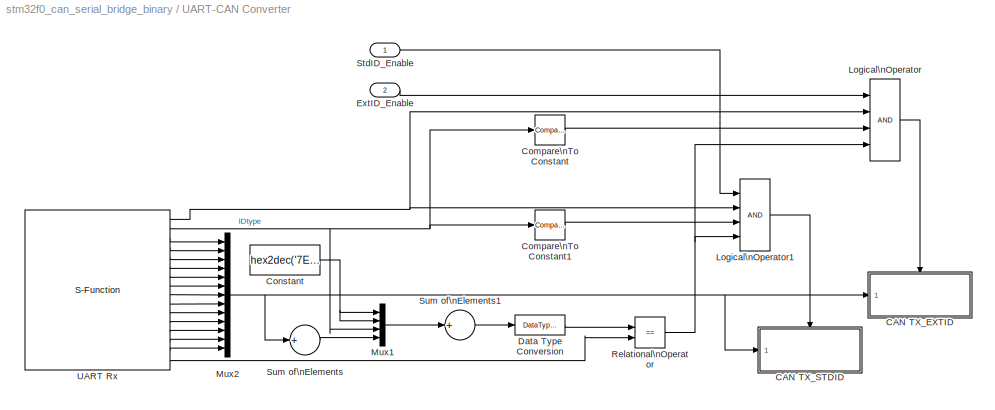
BLOCK [SubSystem] UART-CAN Converter
  FunctionWithSeparateData = off
  MaskHideContents = off
  MinAlgLoopOccurrences = off
  Opaque = off
  Ports = [2]
  PropExecContextOutsideSubsystem = off
  RTWSystemCode = Auto
  RequestExecContextInheritance = off
BLOCK [SubSystem] UART-CAN Converter/CAN TX_EXTID
  FunctionWithSeparateData = off
  MaskHideContents = off
  MinAlgLoopOccurrences = off
  Opaque = off
  Ports = [1, 0, 1]
  PropExecContextOutsideSubsystem = off
  RTWSystemCode = Auto
  RequestExecContextInheritance = off
  TreatAsAtomicUnit = on
BLOCK [Reference] UART-CAN Converter/CAN TX_EXTID/CAN Transmit  REF=stm32f0_can_lib/CAN Transmit
  Ports = [10, 1]
  SourceBlock = stm32f0_can_lib/CAN Transmit
  SourceType = stm32f0_can
  blockid = UARTCANConverterCANTX_EXTIDCANTransmit
  canmodule = 1
  compat = 0
  conf = Tx
  confstr = [\"Blocking\",\"0.5\",\"Extended\",\"off\",\"0\",\"off\",\"8\",\"on\",\"uint8\",\"uint8\",\"uint8\",\"uint8\",\"uint8\",\"uint8\",\"uint8\",\"uint8\"]
  data0type = uint8
  data1type = uint8
  data2type = uint8
  data3type = uint8
  data4type = uint8
  data5type = uint8
  data6type = uint8
  data7type = uint8
  datatype = single
  dlc = 8
  enablestatus = on
  id = 0
  idtype = Extended
  inputarray = [ -1, -1, 3, 3, 3, 3, 3, 3, 3, 3]
  inputlabelarray = { 'ID', 'DLC', 'D0 (uint8)', 'D1 (uint8)', 'D2 (uint8)', 'D3 (uint8)', 'D4 (uint8)', 'D5 (uint8)', 'D6 (uint8)', 'D7 (uint8)' }
  outputarray = [7]
  outputlabelarray = {'Status'}
  sampletime = -1
  sampletimestr = 0.001
  specificdlc = off
  specificid = off
  timeout = 0.5
  transfer = Blocking
BLOCK [Constant] UART-CAN Converter/CAN TX_EXTID/Constant
  OutDataType = fixdt(1, 16)
  OutDataTypeMode = uint8
  OutDataTypeStr = uint8
  OutScaling = 2^0
  Value = hex2dec('7F')
BLOCK [DataTypeConversion] UART-CAN Converter/CAN TX_EXTID/Data Type Conversion
  OutDataType = fixdt(1, 16)
  OutScaling = 2^0
  RndMeth = Floor
  SaturateOnIntegerOverflow = off
BLOCK [Demux] UART-CAN Converter/CAN TX_EXTID/Demux1
  DisplayOption = bar
  Outputs = 13
  Ports = [1, 13]
BLOCK [EnablePort] UART-CAN Converter/CAN TX_EXTID/Enable
  Ports = []
BLOCK [Inport] UART-CAN Converter/CAN TX_EXTID/In1
  IconDisplay = Port number
  OutDataType = fixdt(1, 16)
  OutScaling = 2^0
BLOCK [Mux] UART-CAN Converter/CAN TX_EXTID/Mux
  DisplayOption = bar
  Inputs = 3
  Ports = [3, 1]
BLOCK [SubSystem] UART-CAN Converter/CAN TX_EXTID/Subsystem
  FunctionWithSeparateData = off
  MaskHideContents = off
  MinAlgLoopOccurrences = off
  Opaque = off
  Ports = [4, 1]
  PropExecContextOutsideSubsystem = off
  RTWSystemCode = Auto
  RequestExecContextInheritance = off
BLOCK [Reference] UART-CAN Converter/CAN TX_EXTID/Subsystem/Bitwise\nOperator1  REF=simulink/Logic and Bit\nOperations/Bitwise\nOperator
  BitMask = bin2dec('11011001')
  BitMaskRealWorld = Stored Integer
  NumInputPorts = 4
  Ports = [4, 1]
  SourceBlock = simulink/Logic and Bit\nOperations/Bitwise\nOperator
  SourceType = Bitwise Operator
  UseBitMask = off
  logicop = OR
BLOCK [DataTypeConversion] UART-CAN Converter/CAN TX_EXTID/Subsystem/Data Type Conversion
  OutDataType = fixdt(1, 16)
  OutDataTypeMode = uint32
  OutDataTypeStr = uint32
  OutScaling = 2^0
  RndMeth = Floor
  SaturateOnIntegerOverflow = off
BLOCK [DataTypeConversion] UART-CAN Converter/CAN TX_EXTID/Subsystem/Data Type Conversion1
  OutDataType = fixdt(1, 16)
  OutDataTypeMode = uint32
  OutDataTypeStr = uint32
  OutScaling = 2^0
  RndMeth = Floor
  SaturateOnIntegerOverflow = off
BLOCK [DataTypeConversion] UART-CAN Converter/CAN TX_EXTID/Subsystem/Data Type Conversion2
  OutDataType = fixdt(1, 16)
  OutDataTypeMode = uint32
  OutDataTypeStr = uint32
  OutScaling = 2^0
  RndMeth = Floor
  SaturateOnIntegerOverflow = off
BLOCK [DataTypeConversion] UART-CAN Converter/CAN TX_EXTID/Subsystem/Data Type Conversion3
  OutDataType = fixdt(1, 16)
  OutDataTypeMode = uint32
  OutDataTypeStr = uint32
  OutScaling = 2^0
  RndMeth = Floor
  SaturateOnIntegerOverflow = off
BLOCK [Inport] UART-CAN Converter/CAN TX_EXTID/Subsystem/In1
  IconDisplay = Port number
  OutDataType = fixdt(1, 16)
  OutScaling = 2^0
BLOCK [Inport] UART-CAN Converter/CAN TX_EXTID/Subsystem/In2
  IconDisplay = Port number
  OutDataType = fixdt(1, 16)
  OutScaling = 2^0
  Port = 2
BLOCK [Inport] UART-CAN Converter/CAN TX_EXTID/Subsystem/In3
  IconDisplay = Port number
  OutDataType = fixdt(1, 16)
  OutScaling = 2^0
  Port = 3
BLOCK [Inport] UART-CAN Converter/CAN TX_EXTID/Subsystem/In4
  IconDisplay = Port number
  OutDataType = fixdt(1, 16)
  OutScaling = 2^0
  Port = 4
BLOCK [Outport] UART-CAN Converter/CAN TX_EXTID/Subsystem/Out1
  IconDisplay = Port number
  OutDataType = fixdt(1, 16)
  OutScaling = 2^0
BLOCK [Reference] UART-CAN Converter/CAN TX_EXTID/Subsystem/Shift\nArithmetic  REF=simulink/Logic and Bit\nOperations/Shift\nArithmetic
  FunctionWithSeparateData = off
  Ports = [1, 1]
  RTWMemSecDataConstants = Inherit from model
  RTWMemSecDataInternal = Inherit from model
  RTWMemSecDataParameters = Inherit from model
  RTWMemSecFuncExecute = Inherit from model
  RTWMemSecFuncInitTerm = Inherit from model
  ShowPortLabels = FromPortIcon
  SourceBlock = simulink/Logic and Bit\nOperations/Shift\nArithmetic
  SourceType = Shift Arithmetic
  SystemSampleTime = -1
  nBinPtShiftRight = 0
  nBitShiftRight = -8
BLOCK [Reference] UART-CAN Converter/CAN TX_EXTID/Subsystem/Shift\nArithmetic1  REF=simulink/Logic and Bit\nOperations/Shift\nArithmetic
  FunctionWithSeparateData = off
  Ports = [1, 1]
  RTWMemSecDataConstants = Inherit from model
  RTWMemSecDataInternal = Inherit from model
  RTWMemSecDataParameters = Inherit from model
  RTWMemSecFuncExecute = Inherit from model
  RTWMemSecFuncInitTerm = Inherit from model
  ShowPortLabels = FromPortIcon
  SourceBlock = simulink/Logic and Bit\nOperations/Shift\nArithmetic
  SourceType = Shift Arithmetic
  SystemSampleTime = -1
  nBinPtShiftRight = 0
  nBitShiftRight = -16
BLOCK [Reference] UART-CAN Converter/CAN TX_EXTID/Subsystem/Shift\nArithmetic2  REF=simulink/Logic and Bit\nOperations/Shift\nArithmetic
  FunctionWithSeparateData = off
  Ports = [1, 1]
  RTWMemSecDataConstants = Inherit from model
  RTWMemSecDataInternal = Inherit from model
  RTWMemSecDataParameters = Inherit from model
  RTWMemSecFuncExecute = Inherit from model
  RTWMemSecFuncInitTerm = Inherit from model
  ShowPortLabels = FromPortIcon
  SourceBlock = simulink/Logic and Bit\nOperations/Shift\nArithmetic
  SourceType = Shift Arithmetic
  SystemSampleTime = -1
  nBinPtShiftRight = 0
  nBitShiftRight = -24
BLOCK [Sum] UART-CAN Converter/CAN TX_EXTID/Sum of\nElements
  InputSameDT = off
  Inputs = +
  OutDataType = fixdt(1, 16)
  OutDataTypeMode = Inherit via internal rule
  OutDataTypeStr = Inherit: Inherit via internal rule
  OutScaling = 2^-10
  Ports = [1, 1]
  SaturateOnIntegerOverflow = off
BLOCK [S-Function] UART-CAN Converter/CAN TX_EXTID/UART Tx
  EnableBusSupport = off
  FunctionName = stm32f0_uart
  MaskDisplay = text(0.95, 0.5, 'Module: USART1_Tx\\nPacket: Binary\\nTransfer: Blocking\\nTs (sec): 0.001','ver','middle','hor','right'); port_label('input', 1,'uint8'); port_label('input', 2,'uint8'); port_label('input', 3,'uint8'); port_label('input', 4,'uint8');
  MaskEnableString = on,on,on,on,on,on,on,on,on,off,off,on,on,on,on,on,on,on,on,on,on,on,on,on,on,on,on,on,on,on,on,on,on,on,on,on,on,off,on,on,on,on,on,on,on,on,on,on,on,on
  MaskHelp = web(fullfile(waijungdocroot,'stm32f0_uart_tx.htm'), '-browser')
  MaskIconFrame = on
  MaskIconOpaque = on
  MaskIconRotate = none
  MaskIconUnits = normalized
  MaskInitialization = stm32f0_uart_callback('init');
  MaskPortRotate = default
  MaskSelfModifiable = on
  MaskTabNameString = ,,,,,,,,,,,,,,,,,,,,,,,,,,,,,,,,,,,,,,,,,,,,,,,,,
  MaskToolTipString = on,on,on,on,on,on,on,on,on,on,on,on,on,on,on,on,on,on,on,on,on,on,on,on,on,on,on,on,on,on,on,on,on,on,on,on,on,on,on,on,on,on,on,on,on,on,on,on,on,on
  MaskType = stm32f0_uart
  MaskValueString = Tx|1|115200|8|No|1|A9|A10|None|Not used|Not used|off|64|64|Blocking|Binary|''|''|0|0|0|4|0|0|0|0|'%u: CODE: %u'|CR (0x0D - \"\\r\")|CRLF (0x0D 0x0A - \"<path>")|<empty>|||inf|off|de|fff,ff,sdfsd|0|UARTCANConverterCANTX_EXTIDUARTTx|[3 3 3 3]|[]|{'uint8' 'uint8' 'uint8' 'uint8'}|[]|[]|{}|0|[\"1\", \"1\", \"A\", \"9\", \"1\", \"A\", \"10\", \"0\", \"*\", \"*\", \"0\", \"*\", \"*\", \"1\", \"1\", \"\...<+125ch>
  MaskVarAliasString = ,,,,,,,,,,,,,,,,,,,,,,,,,,,,,,,,,,,,,,,,,,,,,,,,,
  Parameters = conf,inputporttype,inputportwidth,outputporttype,outputportwidth,asciiheader,optionstring,headerstring,terminatorstring,asciidatatypestring,sampletime,blockid
  Ports = [4]
BLOCK [SubSystem] UART-CAN Converter/CAN TX_STDID
  FunctionWithSeparateData = off
  MaskHideContents = off
  MinAlgLoopOccurrences = off
  Opaque = off
  Ports = [1, 0, 1]
  PropExecContextOutsideSubsystem = off
  RTWSystemCode = Auto
  RequestExecContextInheritance = off
  TreatAsAtomicUnit = on
BLOCK [Reference] UART-CAN Converter/CAN TX_STDID/CAN Transmit  REF=stm32f0_can_lib/CAN Transmit
  Ports = [10, 1]
  SourceBlock = stm32f0_can_lib/CAN Transmit
  SourceType = stm32f0_can
  blockid = UARTCANConverterCANTX_STDIDCANTransmit
  canmodule = 1
  compat = 0
  conf = Tx
  confstr = [\"Blocking\",\"0.5\",\"Standard\",\"off\",\"0\",\"off\",\"8\",\"on\",\"uint8\",\"uint8\",\"uint8\",\"uint8\",\"uint8\",\"uint8\",\"uint8\",\"uint8\"]
  data0type = uint8
  data1type = uint8
  data2type = uint8
  data3type = uint8
  data4type = uint8
  data5type = uint8
  data6type = uint8
  data7type = uint8
  datatype = single
  dlc = 8
  enablestatus = on
  id = 0
  idtype = Standard
  inputarray = [ -1, -1, 3, 3, 3, 3, 3, 3, 3, 3]
  inputlabelarray = { 'ID', 'DLC', 'D0 (uint8)', 'D1 (uint8)', 'D2 (uint8)', 'D3 (uint8)', 'D4 (uint8)', 'D5 (uint8)', 'D6 (uint8)', 'D7 (uint8)' }
  outputarray = [7]
  outputlabelarray = {'Status'}
  sampletime = -1
  sampletimestr = 0.001
  specificdlc = off
  specificid = off
  timeout = 0.5
  transfer = Blocking
BLOCK [Constant] UART-CAN Converter/CAN TX_STDID/Constant
  OutDataType = fixdt(1, 16)
  OutDataTypeMode = uint8
  OutDataTypeStr = uint8
  OutScaling = 2^0
  Value = hex2dec('7F')
BLOCK [DataTypeConversion] UART-CAN Converter/CAN TX_STDID/Data Type Conversion
  OutDataType = fixdt(1, 16)
  OutScaling = 2^0
  RndMeth = Floor
  SaturateOnIntegerOverflow = off
BLOCK [Demux] UART-CAN Converter/CAN TX_STDID/Demux2
  DisplayOption = bar
  Outputs = 13
  Ports = [1, 13]
BLOCK [EnablePort] UART-CAN Converter/CAN TX_STDID/Enable
  Ports = []
BLOCK [Inport] UART-CAN Converter/CAN TX_STDID/In1
  IconDisplay = Port number
  OutDataType = fixdt(1, 16)
  OutScaling = 2^0
BLOCK [Mux] UART-CAN Converter/CAN TX_STDID/Mux
  DisplayOption = bar
  Inputs = 3
  Ports = [3, 1]
BLOCK [SubSystem] UART-CAN Converter/CAN TX_STDID/Subsystem
  FunctionWithSeparateData = off
  MaskHideContents = off
  MinAlgLoopOccurrences = off
  Opaque = off
  Ports = [4, 1]
  PropExecContextOutsideSubsystem = off
  RTWSystemCode = Auto
  RequestExecContextInheritance = off
BLOCK [Reference] UART-CAN Converter/CAN TX_STDID/Subsystem/Bitwise\nOperator1  REF=simulink/Logic and Bit\nOperations/Bitwise\nOperator
  BitMask = bin2dec('11011001')
  BitMaskRealWorld = Stored Integer
  NumInputPorts = 4
  Ports = [4, 1]
  SourceBlock = simulink/Logic and Bit\nOperations/Bitwise\nOperator
  SourceType = Bitwise Operator
  UseBitMask = off
  logicop = OR
BLOCK [DataTypeConversion] UART-CAN Converter/CAN TX_STDID/Subsystem/Data Type Conversion
  OutDataType = fixdt(1, 16)
  OutDataTypeMode = uint32
  OutDataTypeStr = uint32
  OutScaling = 2^0
  RndMeth = Floor
  SaturateOnIntegerOverflow = off
BLOCK [DataTypeConversion] UART-CAN Converter/CAN TX_STDID/Subsystem/Data Type Conversion1
  OutDataType = fixdt(1, 16)
  OutDataTypeMode = uint32
  OutDataTypeStr = uint32
  OutScaling = 2^0
  RndMeth = Floor
  SaturateOnIntegerOverflow = off
BLOCK [DataTypeConversion] UART-CAN Converter/CAN TX_STDID/Subsystem/Data Type Conversion2
  OutDataType = fixdt(1, 16)
  OutDataTypeMode = uint32
  OutDataTypeStr = uint32
  OutScaling = 2^0
  RndMeth = Floor
  SaturateOnIntegerOverflow = off
BLOCK [DataTypeConversion] UART-CAN Converter/CAN TX_STDID/Subsystem/Data Type Conversion3
  OutDataType = fixdt(1, 16)
  OutDataTypeMode = uint32
  OutDataTypeStr = uint32
  OutScaling = 2^0
  RndMeth = Floor
  SaturateOnIntegerOverflow = off
BLOCK [Inport] UART-CAN Converter/CAN TX_STDID/Subsystem/In1
  IconDisplay = Port number
  OutDataType = fixdt(1, 16)
  OutScaling = 2^0
BLOCK [Inport] UART-CAN Converter/CAN TX_STDID/Subsystem/In2
  IconDisplay = Port number
  OutDataType = fixdt(1, 16)
  OutScaling = 2^0
  Port = 2
BLOCK [Inport] UART-CAN Converter/CAN TX_STDID/Subsystem/In3
  IconDisplay = Port number
  OutDataType = fixdt(1, 16)
  OutScaling = 2^0
  Port = 3
BLOCK [Inport] UART-CAN Converter/CAN TX_STDID/Subsystem/In4
  IconDisplay = Port number
  OutDataType = fixdt(1, 16)
  OutScaling = 2^0
  Port = 4
BLOCK [Outport] UART-CAN Converter/CAN TX_STDID/Subsystem/Out1
  IconDisplay = Port number
  OutDataType = fixdt(1, 16)
  OutScaling = 2^0
BLOCK [Reference] UART-CAN Converter/CAN TX_STDID/Subsystem/Shift\nArithmetic  REF=simulink/Logic and Bit\nOperations/Shift\nArithmetic
  FunctionWithSeparateData = off
  Ports = [1, 1]
  RTWMemSecDataConstants = Inherit from model
  RTWMemSecDataInternal = Inherit from model
  RTWMemSecDataParameters = Inherit from model
  RTWMemSecFuncExecute = Inherit from model
  RTWMemSecFuncInitTerm = Inherit from model
  ShowPortLabels = FromPortIcon
  SourceBlock = simulink/Logic and Bit\nOperations/Shift\nArithmetic
  SourceType = Shift Arithmetic
  SystemSampleTime = -1
  nBinPtShiftRight = 0
  nBitShiftRight = -8
BLOCK [Reference] UART-CAN Converter/CAN TX_STDID/Subsystem/Shift\nArithmetic1  REF=simulink/Logic and Bit\nOperations/Shift\nArithmetic
  FunctionWithSeparateData = off
  Ports = [1, 1]
  RTWMemSecDataConstants = Inherit from model
  RTWMemSecDataInternal = Inherit from model
  RTWMemSecDataParameters = Inherit from model
  RTWMemSecFuncExecute = Inherit from model
  RTWMemSecFuncInitTerm = Inherit from model
  ShowPortLabels = FromPortIcon
  SourceBlock = simulink/Logic and Bit\nOperations/Shift\nArithmetic
  SourceType = Shift Arithmetic
  SystemSampleTime = -1
  nBinPtShiftRight = 0
  nBitShiftRight = -16
BLOCK [Reference] UART-CAN Converter/CAN TX_STDID/Subsystem/Shift\nArithmetic2  REF=simulink/Logic and Bit\nOperations/Shift\nArithmetic
  FunctionWithSeparateData = off
  Ports = [1, 1]
  RTWMemSecDataConstants = Inherit from model
  RTWMemSecDataInternal = Inherit from model
  RTWMemSecDataParameters = Inherit from model
  RTWMemSecFuncExecute = Inherit from model
  RTWMemSecFuncInitTerm = Inherit from model
  ShowPortLabels = FromPortIcon
  SourceBlock = simulink/Logic and Bit\nOperations/Shift\nArithmetic
  SourceType = Shift Arithmetic
  SystemSampleTime = -1
  nBinPtShiftRight = 0
  nBitShiftRight = -24
BLOCK [Sum] UART-CAN Converter/CAN TX_STDID/Sum of\nElements
  InputSameDT = off
  Inputs = +
  OutDataType = fixdt(1, 16)
  OutDataTypeMode = Inherit via internal rule
  OutDataTypeStr = Inherit: Inherit via internal rule
  OutScaling = 2^-10
  Ports = [1, 1]
  SaturateOnIntegerOverflow = off
BLOCK [S-Function] UART-CAN Converter/CAN TX_STDID/UART Tx
  EnableBusSupport = off
  FunctionName = stm32f0_uart
  MaskDisplay = text(0.95, 0.5, 'Module: USART1_Tx\\nPacket: Binary\\nTransfer: Blocking\\nTs (sec): 0.001','ver','middle','hor','right'); port_label('input', 1,'uint8'); port_label('input', 2,'uint8'); port_label('input', 3,'uint8'); port_label('input', 4,'uint8');
  MaskEnableString = on,on,on,on,on,on,on,on,on,off,off,on,on,on,on,on,on,on,on,on,on,on,on,on,on,on,on,on,on,on,on,on,on,on,on,on,on,off,on,on,on,on,on,on,on,on,on,on,on,on
  MaskHelp = web(fullfile(waijungdocroot,'stm32f0_uart_tx.htm'), '-browser')
  MaskIconFrame = on
  MaskIconOpaque = on
  MaskIconRotate = none
  MaskIconUnits = normalized
  MaskInitialization = stm32f0_uart_callback('init');
  MaskPortRotate = default
  MaskSelfModifiable = on
  MaskTabNameString = ,,,,,,,,,,,,,,,,,,,,,,,,,,,,,,,,,,,,,,,,,,,,,,,,,
  MaskToolTipString = on,on,on,on,on,on,on,on,on,on,on,on,on,on,on,on,on,on,on,on,on,on,on,on,on,on,on,on,on,on,on,on,on,on,on,on,on,on,on,on,on,on,on,on,on,on,on,on,on,on
  MaskType = stm32f0_uart
  MaskValueString = Tx|1|115200|8|No|1|A9|A10|None|Not used|Not used|off|64|64|Blocking|Binary|''|''|0|0|0|4|0|0|0|0|'%u: CODE: %u'|CR (0x0D - \"\\r\")|CRLF (0x0D 0x0A - \"<path>")|<empty>|||inf|off|de|fff,ff,sdfsd|0|UARTCANConverterCANTX_STDIDUARTTx|[3 3 3 3]|[]|{'uint8' 'uint8' 'uint8' 'uint8'}|[]|[]|{}|0|[\"1\", \"1\", \"A\", \"9\", \"1\", \"A\", \"10\", \"0\", \"*\", \"*\", \"0\", \"*\", \"*\", \"1\", \"1\", \"\...<+125ch>
  MaskVarAliasString = ,,,,,,,,,,,,,,,,,,,,,,,,,,,,,,,,,,,,,,,,,,,,,,,,,
  Parameters = conf,inputporttype,inputportwidth,outputporttype,outputportwidth,asciiheader,optionstring,headerstring,terminatorstring,asciidatatypestring,sampletime,blockid
  Ports = [4]
BLOCK [Reference] UART-CAN Converter/Compare\nTo Constant  REF=simulink/Logic and Bit\nOperations/Compare\nTo Constant
  FunctionWithSeparateData = off
  LogicOutDataTypeMode = uint8
  Ports = [1, 1]
  RTWMemSecDataConstants = Inherit from model
  RTWMemSecDataInternal = Inherit from model
  RTWMemSecDataParameters = Inherit from model
  RTWMemSecFuncExecute = Inherit from model
  RTWMemSecFuncInitTerm = Inherit from model
  ShowPortLabels = FromPortIcon
  SourceBlock = simulink/Logic and Bit\nOperations/Compare\nTo Constant
  SourceType = Compare To Constant
  SystemSampleTime = -1
  ZeroCross = off
  const = 0
  relop = ==
BLOCK [Reference] UART-CAN Converter/Compare\nTo Constant1  REF=simulink/Logic and Bit\nOperations/Compare\nTo Constant
  FunctionWithSeparateData = off
  LogicOutDataTypeMode = uint8
  Ports = [1, 1]
  RTWMemSecDataConstants = Inherit from model
  RTWMemSecDataInternal = Inherit from model
  RTWMemSecDataParameters = Inherit from model
  RTWMemSecFuncExecute = Inherit from model
  RTWMemSecFuncInitTerm = Inherit from model
  ShowPortLabels = FromPortIcon
  SourceBlock = simulink/Logic and Bit\nOperations/Compare\nTo Constant
  SourceType = Compare To Constant
  SystemSampleTime = -1
  ZeroCross = off
  const = 1
  relop = ==
BLOCK [Constant] UART-CAN Converter/Constant
  OutDataType = fixdt(1, 16)
  OutDataTypeMode = uint8
  OutDataTypeStr = uint8
  OutScaling = 2^0
  Value = hex2dec('7E')
BLOCK [DataTypeConversion] UART-CAN Converter/Data Type Conversion
  OutDataType = fixdt(1, 16)
  OutDataTypeMode = uint8
  OutDataTypeStr = uint8
  OutScaling = 2^0
  RndMeth = Floor
  SaturateOnIntegerOverflow = off
BLOCK [Inport] UART-CAN Converter/ExtID_Enable
  IconDisplay = Port number
  OutDataType = fixdt(1, 16)
  OutScaling = 2^0
  Port = 2
BLOCK [Logic] UART-CAN Converter/Logical\nOperator
  AllPortsSameDT = off
  Inputs = 4
  LogicDataType = fixdt(0, 8)
  OutDataTypeMode = boolean
  OutDataTypeStr = boolean
  Ports = [4, 1]
BLOCK [Logic] UART-CAN Converter/Logical\nOperator1
  AllPortsSameDT = off
  Inputs = 4
  LogicDataType = fixdt(0, 8)
  OutDataTypeMode = boolean
  OutDataTypeStr = boolean
  Ports = [4, 1]
BLOCK [Mux] UART-CAN Converter/Mux1
  DisplayOption = bar
  Ports = [4, 1]
BLOCK [Mux] UART-CAN Converter/Mux2
  DisplayOption = bar
  Inputs = 13
  Ports = [13, 1]
BLOCK [RelationalOperator] UART-CAN Converter/Relational\nOperator
  InputSameDT = off
  LogicDataType = fixdt(0, 8)
  LogicOutDataTypeMode = boolean
  Operator = ==
  OutDataTypeStr = boolean
BLOCK [Inport] UART-CAN Converter/StdID_Enable
  IconDisplay = Port number
  OutDataType = fixdt(1, 16)
  OutScaling = 2^0
BLOCK [Sum] UART-CAN Converter/Sum of\nElements
  InputSameDT = off
  Inputs = +
  OutDataType = fixdt(1, 16)
  OutDataTypeMode = Inherit via internal rule
  OutDataTypeStr = Inherit: Inherit via internal rule
  OutScaling = 2^-10
  Ports = [1, 1]
  SaturateOnIntegerOverflow = off
BLOCK [Sum] UART-CAN Converter/Sum of\nElements1
  InputSameDT = off
  Inputs = +
  OutDataType = fixdt(1, 16)
  OutDataTypeMode = Inherit via internal rule
  OutDataTypeStr = Inherit: Inherit via internal rule
  OutScaling = 2^-10
  Ports = [1, 1]
  SaturateOnIntegerOverflow = off
BLOCK [S-Function] UART-CAN Converter/UART Rx
  EnableBusSupport = off
  FunctionName = stm32f0_uart
  MaskDescription = UART Module\n - Select module corresponding to \"UART Setup\" block.\nTransfer\n - Blocking: the block wait until data receiving is ready.\n - Non-Blocking: if data receiving is ready, the block return non-zero to READY port otherwise return 0.\nPacket mode:\n - Ascii: receiving data is ascii, Ascii format + End of packet.\n - Binary: receiving data is binary format, Header + Data + Terminator\n -...<+199ch>
  MaskDisplay = text(0.05, 0.5, 'Module: USART1_Rx\\nPacket: Binary\\nTransfer: Non-Blocking\\nTs (sec): 0.001','ver','middle','hor','left'); port_label('output', 1,'READY'); port_label('output', 2,'uint8'); port_label('output', 3,'uint8'); port_label('output', 4,'uint8'); port_label('output', 5,'uint8'); port_label('output', 6,'uint8'); port_label('output', 7,'uint8'); port_label('output', 8,'uint8'); port_label...<+260ch>
  MaskEnableString = on,on,on,on,on,on,on,on,on,off,off,on,on,on,on,on,on,on,on,on,on,on,on,on,on,on,on,on,on,on,on,on,on,on,on,on,on,off,on,on,on,on,on,on,on,on,on,on,on,on
  MaskHelp = web(fullfile(waijungdocroot,'stm32f0_uart_rx.htm'), '-browser')
  MaskIconFrame = on
  MaskIconOpaque = on
  MaskIconRotate = none
  MaskIconUnits = normalized
  MaskInitialization = stm32f0_uart_callback('init');
  MaskPortRotate = default
  MaskSelfModifiable = on
  MaskTabNameString = ,,,,,,,,,,,,,,,,,,,,,,,,,,,,,,,,,,,,,,,,,,,,,,,,,
  MaskToolTipString = on,on,on,on,on,on,on,on,on,on,on,on,on,on,on,on,on,on,on,on,on,on,on,on,on,on,on,on,on,on,on,on,on,on,on,on,on,on,on,on,on,on,on,on,on,on,on,on,on,on
  MaskType = stm32f0_uart
  MaskValueString = Rx|1|115200|8|No|1|A9|A10|None|Not used|Not used|off|64|64|Non-Blocking|Binary|'7E 7E'|''|0|0|0|15|0|0|0|0|'cantx,extid=%u,dlc=%x,data=%x,%x,%x,%x,%x,%x,%x,%x'|CRLF (0x0D 0x0A - \"<path>")|LF (0x0A - \"\\n\")|<empty>|||inf|off|de|fff,ff,sdfsd|0|UARTCANConverterUARTRx|[]|[]|{}|[3 3 3 3 3 3 3 3 3 3 3 3 3 3 3 3]|[]|{'READY' 'uint8' 'uint8' 'uint8' 'uint8' 'uint8' 'uint8' 'uint8' 'uint8' 'uint8' 'uin...<+301ch>
  MaskVarAliasString = ,,,,,,,,,,,,,,,,,,,,,,,,,,,,,,,,,,,,,,,,,,,,,,,,,
  Parameters = conf,inputporttype,inputportwidth,outputporttype,outputportwidth,asciiheader,optionstring,headerstring,terminatorstring,asciidatatypestring,sampletime,blockid
  Ports = [0, 16]
ANNOTATION (root): CAN-UART Format (17): [FF][FF] [IDType] [ID0][ID1][ID2][ID3] [DLC] [D0][D1][D2][D3][D4][D5][D6][D7] [SUM]
ANNOTATION (root): Filter Setting Format (13): [AA][55][88][88][88][88] [IDtype] [Enable] [ID0][ID1][ID2][ID3] [SUM] ===> RESPONSE (3): [BB][66][00]
ANNOTATION (root): UART-CAN Format (17): [7E][7E] [IDType] [ID0][ID1][ID2][ID3] [DLC] [D0][D1][D2][D3][D4][D5][D6][D7] [SUM] ===>RESPONSE (4): [7F][7F][sta] [SUM]
ANNOTATION CAN Rx Filter Setting: [AA][55][88][88][88][88][IDtype][Enable][ID0][ID1][ID2][ID3]
ANNOTATION CAN Rx Filter Setting/Response: [BB][66][00]
NET CAN Rx Filter Setting/Compare\nTo Constant1:1 -> CAN Rx Filter Setting/Logical\nOperator1:2, CAN Rx Filter Setting/Logical\nOperator2:1
NET CAN Rx Filter Setting/Compare\nTo Zero:1 -> CAN Rx Filter Setting/Enabled\nSubsystem1:1, CAN Rx Filter Setting/Enabled\nSubsystem:1
LINE CAN Rx Filter Setting/Enabled\nSubsystem/ena:1 -> CAN Rx Filter Setting/Enabled\nSubsystem/StdID_Enable:1
LINE CAN Rx Filter Setting/Enabled\nSubsystem/id:1 -> CAN Rx Filter Setting/Enabled\nSubsystem/StdID:1
LINE CAN Rx Filter Setting/Enabled\nSubsystem1/ena:1 -> CAN Rx Filter Setting/Enabled\nSubsystem1/ExtID_Enable:1
LINE CAN Rx Filter Setting/Enabled\nSubsystem1/id:1 -> CAN Rx Filter Setting/Enabled\nSubsystem1/ExtID:1
LINE CAN Rx Filter Setting/Enabled\nSubsystem1:1 -> CAN Rx Filter Setting/ExtID Enable:1
LINE CAN Rx Filter Setting/Enabled\nSubsystem1:2 -> CAN Rx Filter Setting/ExtID Filter:1
LINE CAN Rx Filter Setting/Enabled\nSubsystem:1 -> CAN Rx Filter Setting/StdID Enable:1
LINE CAN Rx Filter Setting/Enabled\nSubsystem:2 -> CAN Rx Filter Setting/StdID Filter:1
LINE CAN Rx Filter Setting/Logical\nOperator1:1 -> CAN Rx Filter Setting/Enabled\nSubsystem1:enable
LINE CAN Rx Filter Setting/Logical\nOperator2:1 -> CAN Rx Filter Setting/Logical\nOperator:2
LINE CAN Rx Filter Setting/Logical\nOperator:1 -> CAN Rx Filter Setting/Enabled\nSubsystem:enable
NET CAN Rx Filter Setting/UART Rx:1 -> CAN Rx Filter Setting/Logical\nOperator1:1, CAN Rx Filter Setting/Logical\nOperator:1, CAN Rx Filter Setting/Response:enable
LINE CAN Rx Filter Setting/UART Rx:2 -> CAN Rx Filter Setting/Compare\nTo Constant1:1
LINE CAN Rx Filter Setting/UART Rx:3 -> CAN Rx Filter Setting/Compare\nTo Zero:1
NET CAN Rx Filter Setting/UART Rx:4 -> CAN Rx Filter Setting/Enabled\nSubsystem1:2, CAN Rx Filter Setting/Enabled\nSubsystem:2
LINE CAN Rx Filter Setting:1 -> Goto:1
LINE CAN Rx Filter Setting:2 -> Goto2:1
LINE CAN Rx Filter Setting:3 -> Goto1:1
LINE CAN Rx Filter Setting:4 -> Goto3:1
LINE EXTID CAN-UART Converter/CAN Receive:1 -> EXTID CAN-UART Converter/Compare\nTo Zero:1
LINE EXTID CAN-UART Converter/CAN Receive:10 -> EXTID CAN-UART Converter/Mux:7
LINE EXTID CAN-UART Converter/CAN Receive:11 -> EXTID CAN-UART Converter/Mux:8
NET EXTID CAN-UART Converter/CAN Receive:2 -> EXTID CAN-UART Converter/Enabled\nSubsystem:1, EXTID CAN-UART Converter/Relational\nOperator:1
LINE EXTID CAN-UART Converter/CAN Receive:3 -> EXTID CAN-UART Converter/Enabled\nSubsystem:2
LINE EXTID CAN-UART Converter/CAN Receive:4 -> EXTID CAN-UART Converter/Mux:1
LINE EXTID CAN-UART Converter/CAN Receive:5 -> EXTID CAN-UART Converter/Mux:2
LINE EXTID CAN-UART Converter/CAN Receive:6 -> EXTID CAN-UART Converter/Mux:3
LINE EXTID CAN-UART Converter/CAN Receive:7 -> EXTID CAN-UART Converter/Mux:4
LINE EXTID CAN-UART Converter/CAN Receive:8 -> EXTID CAN-UART Converter/Mux:5
LINE EXTID CAN-UART Converter/CAN Receive:9 -> EXTID CAN-UART Converter/Mux:6
LINE EXTID CAN-UART Converter/Compare\nTo Constant:1 -> EXTID CAN-UART Converter/Switch:2
LINE EXTID CAN-UART Converter/Compare\nTo Zero:1 -> EXTID CAN-UART Converter/Logical\nOperator:1
LINE EXTID CAN-UART Converter/Constant:1 -> EXTID CAN-UART Converter/Switch:1
LINE EXTID CAN-UART Converter/Enabled\nSubsystem/DLC:1 -> EXTID CAN-UART Converter/Enabled\nSubsystem/Data Type Conversion1:1
NET EXTID CAN-UART Converter/Enabled\nSubsystem/Data Type Conversion1:1 -> EXTID CAN-UART Converter/Enabled\nSubsystem/Mux:8, EXTID CAN-UART Converter/Enabled\nSubsystem/UART Tx:8
NET EXTID CAN-UART Converter/Enabled\nSubsystem/Data:1 -> EXTID CAN-UART Converter/Enabled\nSubsystem/Demux:1, EXTID CAN-UART Converter/Enabled\nSubsystem/Sum of\nElements:1
LINE EXTID CAN-UART Converter/Enabled\nSubsystem/Demux:1 -> EXTID CAN-UART Converter/Enabled\nSubsystem/UART Tx:9
LINE EXTID CAN-UART Converter/Enabled\nSubsystem/Demux:2 -> EXTID CAN-UART Converter/Enabled\nSubsystem/UART Tx:10
LINE EXTID CAN-UART Converter/Enabled\nSubsystem/Demux:3 -> EXTID CAN-UART Converter/Enabled\nSubsystem/UART Tx:11
LINE EXTID CAN-UART Converter/Enabled\nSubsystem/Demux:4 -> EXTID CAN-UART Converter/Enabled\nSubsystem/UART Tx:12
LINE EXTID CAN-UART Converter/Enabled\nSubsystem/Demux:5 -> EXTID CAN-UART Converter/Enabled\nSubsystem/UART Tx:13
LINE EXTID CAN-UART Converter/Enabled\nSubsystem/Demux:6 -> EXTID CAN-UART Converter/Enabled\nSubsystem/UART Tx:14
LINE EXTID CAN-UART Converter/Enabled\nSubsystem/Demux:7 -> EXTID CAN-UART Converter/Enabled\nSubsystem/UART Tx:15
LINE EXTID CAN-UART Converter/Enabled\nSubsystem/Demux:8 -> EXTID CAN-UART Converter/Enabled\nSubsystem/UART Tx:16
NET EXTID CAN-UART Converter/Enabled\nSubsystem/FF:1 -> EXTID CAN-UART Converter/Enabled\nSubsystem/Mux:1, EXTID CAN-UART Converter/Enabled\nSubsystem/Mux:2, EXTID CAN-UART Converter/Enabled\nSubsystem/UART Tx:1, EXTID CAN-UART Converter/Enabled\nSubsystem/UART Tx:2
LINE EXTID CAN-UART Converter/Enabled\nSubsystem/ID:1 -> EXTID CAN-UART Converter/Enabled\nSubsystem/Subsystem:1
NET EXTID CAN-UART Converter/Enabled\nSubsystem/IDTYPE_EXT:1 -> EXTID CAN-UART Converter/Enabled\nSubsystem/Mux:3, EXTID CAN-UART Converter/Enabled\nSubsystem/UART Tx:3
LINE EXTID CAN-UART Converter/Enabled\nSubsystem/Mux:1 -> EXTID CAN-UART Converter/Enabled\nSubsystem/Sum of\nElements1:1
LINE EXTID CAN-UART Converter/Enabled\nSubsystem/Subsystem/Data Type Conversion1:1 -> EXTID CAN-UART Converter/Enabled\nSubsystem/Subsystem/ID1:1
LINE EXTID CAN-UART Converter/Enabled\nSubsystem/Subsystem/Data Type Conversion2:1 -> EXTID CAN-UART Converter/Enabled\nSubsystem/Subsystem/ID2:1
LINE EXTID CAN-UART Converter/Enabled\nSubsystem/Subsystem/Data Type Conversion3:1 -> EXTID CAN-UART Converter/Enabled\nSubsystem/Subsystem/ID3:1
LINE EXTID CAN-UART Converter/Enabled\nSubsystem/Subsystem/Data Type Conversion:1 -> EXTID CAN-UART Converter/Enabled\nSubsystem/Subsystem/ID0:1
NET EXTID CAN-UART Converter/Enabled\nSubsystem/Subsystem/In1:1 -> EXTID CAN-UART Converter/Enabled\nSubsystem/Subsystem/Data Type Conversion:1, EXTID CAN-UART Converter/Enabled\nSubsystem/Subsystem/Shift\nArithmetic1:1, EXTID CAN-UART Converter/Enabled\nSubsystem/Subsystem/Shift\nArithmetic2:1, EXTID CAN-UART Converter/Enabled\nSubsystem/Subsystem/Shift\nArithmetic:1
LINE EXTID CAN-UART Converter/Enabled\nSubsystem/Subsystem/Shift\nArithmetic1:1 -> EXTID CAN-UART Converter/Enabled\nSubsystem/Subsystem/Data Type Conversion2:1
LINE EXTID CAN-UART Converter/Enabled\nSubsystem/Subsystem/Shift\nArithmetic2:1 -> EXTID CAN-UART Converter/Enabled\nSubsystem/Subsystem/Data Type Conversion3:1
LINE EXTID CAN-UART Converter/Enabled\nSubsystem/Subsystem/Shift\nArithmetic:1 -> EXTID CAN-UART Converter/Enabled\nSubsystem/Subsystem/Data Type Conversion1:1
NET EXTID CAN-UART Converter/Enabled\nSubsystem/Subsystem:1 -> EXTID CAN-UART Converter/Enabled\nSubsystem/Mux:4, EXTID CAN-UART Converter/Enabled\nSubsystem/UART Tx:4
NET EXTID CAN-UART Converter/Enabled\nSubsystem/Subsystem:2 -> EXTID CAN-UART Converter/Enabled\nSubsystem/Mux:5, EXTID CAN-UART Converter/Enabled\nSubsystem/UART Tx:5
NET EXTID CAN-UART Converter/Enabled\nSubsystem/Subsystem:3 -> EXTID CAN-UART Converter/Enabled\nSubsystem/Mux:6, EXTID CAN-UART Converter/Enabled\nSubsystem/UART Tx:6
NET EXTID CAN-UART Converter/Enabled\nSubsystem/Subsystem:4 -> EXTID CAN-UART Converter/Enabled\nSubsystem/Mux:7, EXTID CAN-UART Converter/Enabled\nSubsystem/UART Tx:7
LINE EXTID CAN-UART Converter/Enabled\nSubsystem/Sum of\nElements1:1 -> EXTID CAN-UART Converter/Enabled\nSubsystem/UART Tx:17
LINE EXTID CAN-UART Converter/Enabled\nSubsystem/Sum of\nElements:1 -> EXTID CAN-UART Converter/Enabled\nSubsystem/Mux:9
NET EXTID CAN-UART Converter/ExtFilter:1 -> EXTID CAN-UART Converter/Compare\nTo Constant:1, EXTID CAN-UART Converter/Relational\nOperator:2
LINE EXTID CAN-UART Converter/Logical\nOperator:1 -> EXTID CAN-UART Converter/Enabled\nSubsystem:enable
LINE EXTID CAN-UART Converter/Mux:1 -> EXTID CAN-UART Converter/Enabled\nSubsystem:3
LINE EXTID CAN-UART Converter/Relational\nOperator:1 -> EXTID CAN-UART Converter/Switch:3
LINE EXTID CAN-UART Converter/Switch:1 -> EXTID CAN-UART Converter/Logical\nOperator:2
LINE From1:1 -> STDID CAN_UART Converter:enable
LINE From2:1 -> UART-CAN Converter:1
LINE From3:1 -> UART-CAN Converter:2
LINE From4:1 -> EXTID CAN-UART Converter:1
LINE From5:1 -> STDID CAN_UART Converter:1
LINE From:1 -> EXTID CAN-UART Converter:enable
LINE STDID CAN_UART Converter/CAN Receive1:1 -> STDID CAN_UART Converter/Compare\nTo Zero1:1
LINE STDID CAN_UART Converter/CAN Receive1:10 -> STDID CAN_UART Converter/Mux1:7
LINE STDID CAN_UART Converter/CAN Receive1:11 -> STDID CAN_UART Converter/Mux1:8
NET STDID CAN_UART Converter/CAN Receive1:2 -> STDID CAN_UART Converter/Enabled\nSubsystem1:1, STDID CAN_UART Converter/Relational\nOperator:1
LINE STDID CAN_UART Converter/CAN Receive1:3 -> STDID CAN_UART Converter/Enabled\nSubsystem1:2
LINE STDID CAN_UART Converter/CAN Receive1:4 -> STDID CAN_UART Converter/Mux1:1
LINE STDID CAN_UART Converter/CAN Receive1:5 -> STDID CAN_UART Converter/Mux1:2
LINE STDID CAN_UART Converter/CAN Receive1:6 -> STDID CAN_UART Converter/Mux1:3
LINE STDID CAN_UART Converter/CAN Receive1:7 -> STDID CAN_UART Converter/Mux1:4
LINE STDID CAN_UART Converter/CAN Receive1:8 -> STDID CAN_UART Converter/Mux1:5
LINE STDID CAN_UART Converter/CAN Receive1:9 -> STDID CAN_UART Converter/Mux1:6
LINE STDID CAN_UART Converter/Compare\nTo Constant:1 -> STDID CAN_UART Converter/Switch:2
LINE STDID CAN_UART Converter/Compare\nTo Zero1:1 -> STDID CAN_UART Converter/Logical\nOperator:1
LINE STDID CAN_UART Converter/Constant:1 -> STDID CAN_UART Converter/Switch:1
LINE STDID CAN_UART Converter/Data Type Conversion:1 -> STDID CAN_UART Converter/Switch:3
LINE STDID CAN_UART Converter/Enabled\nSubsystem1/DLC:1 -> STDID CAN_UART Converter/Enabled\nSubsystem1/Data Type Conversion1:1
NET STDID CAN_UART Converter/Enabled\nSubsystem1/Data Type Conversion1:1 -> STDID CAN_UART Converter/Enabled\nSubsystem1/Mux:8, STDID CAN_UART Converter/Enabled\nSubsystem1/UART Tx:8
NET STDID CAN_UART Converter/Enabled\nSubsystem1/Data:1 -> STDID CAN_UART Converter/Enabled\nSubsystem1/Demux:1, STDID CAN_UART Converter/Enabled\nSubsystem1/Sum of\nElements:1
LINE STDID CAN_UART Converter/Enabled\nSubsystem1/Demux:1 -> STDID CAN_UART Converter/Enabled\nSubsystem1/UART Tx:9
LINE STDID CAN_UART Converter/Enabled\nSubsystem1/Demux:2 -> STDID CAN_UART Converter/Enabled\nSubsystem1/UART Tx:10
LINE STDID CAN_UART Converter/Enabled\nSubsystem1/Demux:3 -> STDID CAN_UART Converter/Enabled\nSubsystem1/UART Tx:11
LINE STDID CAN_UART Converter/Enabled\nSubsystem1/Demux:4 -> STDID CAN_UART Converter/Enabled\nSubsystem1/UART Tx:12
LINE STDID CAN_UART Converter/Enabled\nSubsystem1/Demux:5 -> STDID CAN_UART Converter/Enabled\nSubsystem1/UART Tx:13
LINE STDID CAN_UART Converter/Enabled\nSubsystem1/Demux:6 -> STDID CAN_UART Converter/Enabled\nSubsystem1/UART Tx:14
LINE STDID CAN_UART Converter/Enabled\nSubsystem1/Demux:7 -> STDID CAN_UART Converter/Enabled\nSubsystem1/UART Tx:15
LINE STDID CAN_UART Converter/Enabled\nSubsystem1/Demux:8 -> STDID CAN_UART Converter/Enabled\nSubsystem1/UART Tx:16
NET STDID CAN_UART Converter/Enabled\nSubsystem1/FF:1 -> STDID CAN_UART Converter/Enabled\nSubsystem1/Mux:1, STDID CAN_UART Converter/Enabled\nSubsystem1/Mux:2, STDID CAN_UART Converter/Enabled\nSubsystem1/UART Tx:1, STDID CAN_UART Converter/Enabled\nSubsystem1/UART Tx:2
LINE STDID CAN_UART Converter/Enabled\nSubsystem1/ID:1 -> STDID CAN_UART Converter/Enabled\nSubsystem1/Subsystem:1
NET STDID CAN_UART Converter/Enabled\nSubsystem1/IDTYPE_STD:1 -> STDID CAN_UART Converter/Enabled\nSubsystem1/Mux:3, STDID CAN_UART Converter/Enabled\nSubsystem1/UART Tx:3
LINE STDID CAN_UART Converter/Enabled\nSubsystem1/Mux:1 -> STDID CAN_UART Converter/Enabled\nSubsystem1/Sum of\nElements1:1
LINE STDID CAN_UART Converter/Enabled\nSubsystem1/Subsystem/Data Type Conversion1:1 -> STDID CAN_UART Converter/Enabled\nSubsystem1/Subsystem/ID1:1
LINE STDID CAN_UART Converter/Enabled\nSubsystem1/Subsystem/Data Type Conversion2:1 -> STDID CAN_UART Converter/Enabled\nSubsystem1/Subsystem/ID2:1
LINE STDID CAN_UART Converter/Enabled\nSubsystem1/Subsystem/Data Type Conversion3:1 -> STDID CAN_UART Converter/Enabled\nSubsystem1/Subsystem/ID3:1
LINE STDID CAN_UART Converter/Enabled\nSubsystem1/Subsystem/Data Type Conversion:1 -> STDID CAN_UART Converter/Enabled\nSubsystem1/Subsystem/ID0:1
NET STDID CAN_UART Converter/Enabled\nSubsystem1/Subsystem/In1:1 -> STDID CAN_UART Converter/Enabled\nSubsystem1/Subsystem/Data Type Conversion:1, STDID CAN_UART Converter/Enabled\nSubsystem1/Subsystem/Shift\nArithmetic1:1, STDID CAN_UART Converter/Enabled\nSubsystem1/Subsystem/Shift\nArithmetic2:1, STDID CAN_UART Converter/Enabled\nSubsystem1/Subsystem/Shift\nArithmetic:1
LINE STDID CAN_UART Converter/Enabled\nSubsystem1/Subsystem/Shift\nArithmetic1:1 -> STDID CAN_UART Converter/Enabled\nSubsystem1/Subsystem/Data Type Conversion2:1
LINE STDID CAN_UART Converter/Enabled\nSubsystem1/Subsystem/Shift\nArithmetic2:1 -> STDID CAN_UART Converter/Enabled\nSubsystem1/Subsystem/Data Type Conversion3:1
LINE STDID CAN_UART Converter/Enabled\nSubsystem1/Subsystem/Shift\nArithmetic:1 -> STDID CAN_UART Converter/Enabled\nSubsystem1/Subsystem/Data Type Conversion1:1
NET STDID CAN_UART Converter/Enabled\nSubsystem1/Subsystem:1 -> STDID CAN_UART Converter/Enabled\nSubsystem1/Mux:4, STDID CAN_UART Converter/Enabled\nSubsystem1/UART Tx:4
NET STDID CAN_UART Converter/Enabled\nSubsystem1/Subsystem:2 -> STDID CAN_UART Converter/Enabled\nSubsystem1/Mux:5, STDID CAN_UART Converter/Enabled\nSubsystem1/UART Tx:5
NET STDID CAN_UART Converter/Enabled\nSubsystem1/Subsystem:3 -> STDID CAN_UART Converter/Enabled\nSubsystem1/Mux:6, STDID CAN_UART Converter/Enabled\nSubsystem1/UART Tx:6
NET STDID CAN_UART Converter/Enabled\nSubsystem1/Subsystem:4 -> STDID CAN_UART Converter/Enabled\nSubsystem1/Mux:7, STDID CAN_UART Converter/Enabled\nSubsystem1/UART Tx:7
LINE STDID CAN_UART Converter/Enabled\nSubsystem1/Sum of\nElements1:1 -> STDID CAN_UART Converter/Enabled\nSubsystem1/UART Tx:17
LINE STDID CAN_UART Converter/Enabled\nSubsystem1/Sum of\nElements:1 -> STDID CAN_UART Converter/Enabled\nSubsystem1/Mux:9
LINE STDID CAN_UART Converter/Logical\nOperator:1 -> STDID CAN_UART Converter/Enabled\nSubsystem1:enable
LINE STDID CAN_UART Converter/Mux1:1 -> STDID CAN_UART Converter/Enabled\nSubsystem1:3
LINE STDID CAN_UART Converter/Relational\nOperator:1 -> STDID CAN_UART Converter/Data Type Conversion:1
NET STDID CAN_UART Converter/StdFilter:1 -> STDID CAN_UART Converter/Compare\nTo Constant:1, STDID CAN_UART Converter/Relational\nOperator:2
LINE STDID CAN_UART Converter/Switch:1 -> STDID CAN_UART Converter/Logical\nOperator:2
LINE UART-CAN Converter/CAN TX_EXTID/CAN Transmit:1 -> UART-CAN Converter/CAN TX_EXTID/Data Type Conversion:1
NET UART-CAN Converter/CAN TX_EXTID/Constant:1 -> UART-CAN Converter/CAN TX_EXTID/Mux:1, UART-CAN Converter/CAN TX_EXTID/Mux:2, UART-CAN Converter/CAN TX_EXTID/UART Tx:1, UART-CAN Converter/CAN TX_EXTID/UART Tx:2
NET UART-CAN Converter/CAN TX_EXTID/Data Type Conversion:1 -> UART-CAN Converter/CAN TX_EXTID/Mux:3, UART-CAN Converter/CAN TX_EXTID/UART Tx:3
LINE UART-CAN Converter/CAN TX_EXTID/Demux1:1 -> UART-CAN Converter/CAN TX_EXTID/CAN Transmit:2
LINE UART-CAN Converter/CAN TX_EXTID/Demux1:10 -> UART-CAN Converter/CAN TX_EXTID/CAN Transmit:7
LINE UART-CAN Converter/CAN TX_EXTID/Demux1:11 -> UART-CAN Converter/CAN TX_EXTID/CAN Transmit:8
LINE UART-CAN Converter/CAN TX_EXTID/Demux1:12 -> UART-CAN Converter/CAN TX_EXTID/CAN Transmit:9
LINE UART-CAN Converter/CAN TX_EXTID/Demux1:13 -> UART-CAN Converter/CAN TX_EXTID/CAN Transmit:10
LINE UART-CAN Converter/CAN TX_EXTID/Demux1:2 -> UART-CAN Converter/CAN TX_EXTID/Subsystem:1
LINE UART-CAN Converter/CAN TX_EXTID/Demux1:3 -> UART-CAN Converter/CAN TX_EXTID/Subsystem:2
LINE UART-CAN Converter/CAN TX_EXTID/Demux1:4 -> UART-CAN Converter/CAN TX_EXTID/Subsystem:3
LINE UART-CAN Converter/CAN TX_EXTID/Demux1:5 -> UART-CAN Converter/CAN TX_EXTID/Subsystem:4
LINE UART-CAN Converter/CAN TX_EXTID/Demux1:6 -> UART-CAN Converter/CAN TX_EXTID/CAN Transmit:3
LINE UART-CAN Converter/CAN TX_EXTID/Demux1:7 -> UART-CAN Converter/CAN TX_EXTID/CAN Transmit:4
LINE UART-CAN Converter/CAN TX_EXTID/Demux1:8 -> UART-CAN Converter/CAN TX_EXTID/CAN Transmit:5
LINE UART-CAN Converter/CAN TX_EXTID/Demux1:9 -> UART-CAN Converter/CAN TX_EXTID/CAN Transmit:6
LINE UART-CAN Converter/CAN TX_EXTID/In1:1 -> UART-CAN Converter/CAN TX_EXTID/Demux1:1
LINE UART-CAN Converter/CAN TX_EXTID/Mux:1 -> UART-CAN Converter/CAN TX_EXTID/Sum of\nElements:1
LINE UART-CAN Converter/CAN TX_EXTID/Subsystem/Bitwise\nOperator1:1 -> UART-CAN Converter/CAN TX_EXTID/Subsystem/Out1:1
LINE UART-CAN Converter/CAN TX_EXTID/Subsystem/Data Type Conversion1:1 -> UART-CAN Converter/CAN TX_EXTID/Subsystem/Shift\nArithmetic:1
LINE UART-CAN Converter/CAN TX_EXTID/Subsystem/Data Type Conversion2:1 -> UART-CAN Converter/CAN TX_EXTID/Subsystem/Shift\nArithmetic1:1
LINE UART-CAN Converter/CAN TX_EXTID/Subsystem/Data Type Conversion3:1 -> UART-CAN Converter/CAN TX_EXTID/Subsystem/Shift\nArithmetic2:1
LINE UART-CAN Converter/CAN TX_EXTID/Subsystem/Data Type Conversion:1 -> UART-CAN Converter/CAN TX_EXTID/Subsystem/Bitwise\nOperator1:1
LINE UART-CAN Converter/CAN TX_EXTID/Subsystem/In1:1 -> UART-CAN Converter/CAN TX_EXTID/Subsystem/Data Type Conversion:1
LINE UART-CAN Converter/CAN TX_EXTID/Subsystem/In2:1 -> UART-CAN Converter/CAN TX_EXTID/Subsystem/Data Type Conversion1:1
LINE UART-CAN Converter/CAN TX_EXTID/Subsystem/In3:1 -> UART-CAN Converter/CAN TX_EXTID/Subsystem/Data Type Conversion2:1
LINE UART-CAN Converter/CAN TX_EXTID/Subsystem/In4:1 -> UART-CAN Converter/CAN TX_EXTID/Subsystem/Data Type Conversion3:1
LINE UART-CAN Converter/CAN TX_EXTID/Subsystem/Shift\nArithmetic1:1 -> UART-CAN Converter/CAN TX_EXTID/Subsystem/Bitwise\nOperator1:3
LINE UART-CAN Converter/CAN TX_EXTID/Subsystem/Shift\nArithmetic2:1 -> UART-CAN Converter/CAN TX_EXTID/Subsystem/Bitwise\nOperator1:4
LINE UART-CAN Converter/CAN TX_EXTID/Subsystem/Shift\nArithmetic:1 -> UART-CAN Converter/CAN TX_EXTID/Subsystem/Bitwise\nOperator1:2
LINE UART-CAN Converter/CAN TX_EXTID/Subsystem:1 -> UART-CAN Converter/CAN TX_EXTID/CAN Transmit:1
LINE UART-CAN Converter/CAN TX_EXTID/Sum of\nElements:1 -> UART-CAN Converter/CAN TX_EXTID/UART Tx:4
LINE UART-CAN Converter/CAN TX_STDID/CAN Transmit:1 -> UART-CAN Converter/CAN TX_STDID/Data Type Conversion:1
NET UART-CAN Converter/CAN TX_STDID/Constant:1 -> UART-CAN Converter/CAN TX_STDID/Mux:1, UART-CAN Converter/CAN TX_STDID/Mux:2, UART-CAN Converter/CAN TX_STDID/UART Tx:1, UART-CAN Converter/CAN TX_STDID/UART Tx:2
NET UART-CAN Converter/CAN TX_STDID/Data Type Conversion:1 -> UART-CAN Converter/CAN TX_STDID/Mux:3, UART-CAN Converter/CAN TX_STDID/UART Tx:3
LINE UART-CAN Converter/CAN TX_STDID/Demux2:1 -> UART-CAN Converter/CAN TX_STDID/Subsystem:1
LINE UART-CAN Converter/CAN TX_STDID/Demux2:10 -> UART-CAN Converter/CAN TX_STDID/CAN Transmit:7
LINE UART-CAN Converter/CAN TX_STDID/Demux2:11 -> UART-CAN Converter/CAN TX_STDID/CAN Transmit:8
LINE UART-CAN Converter/CAN TX_STDID/Demux2:12 -> UART-CAN Converter/CAN TX_STDID/CAN Transmit:9
LINE UART-CAN Converter/CAN TX_STDID/Demux2:13 -> UART-CAN Converter/CAN TX_STDID/CAN Transmit:10
LINE UART-CAN Converter/CAN TX_STDID/Demux2:2 -> UART-CAN Converter/CAN TX_STDID/Subsystem:2
LINE UART-CAN Converter/CAN TX_STDID/Demux2:3 -> UART-CAN Converter/CAN TX_STDID/Subsystem:3
LINE UART-CAN Converter/CAN TX_STDID/Demux2:4 -> UART-CAN Converter/CAN TX_STDID/Subsystem:4
LINE UART-CAN Converter/CAN TX_STDID/Demux2:5 -> UART-CAN Converter/CAN TX_STDID/CAN Transmit:2
LINE UART-CAN Converter/CAN TX_STDID/Demux2:6 -> UART-CAN Converter/CAN TX_STDID/CAN Transmit:3
LINE UART-CAN Converter/CAN TX_STDID/Demux2:7 -> UART-CAN Converter/CAN TX_STDID/CAN Transmit:4
LINE UART-CAN Converter/CAN TX_STDID/Demux2:8 -> UART-CAN Converter/CAN TX_STDID/CAN Transmit:5
LINE UART-CAN Converter/CAN TX_STDID/Demux2:9 -> UART-CAN Converter/CAN TX_STDID/CAN Transmit:6
LINE UART-CAN Converter/CAN TX_STDID/In1:1 -> UART-CAN Converter/CAN TX_STDID/Demux2:1
LINE UART-CAN Converter/CAN TX_STDID/Mux:1 -> UART-CAN Converter/CAN TX_STDID/Sum of\nElements:1
LINE UART-CAN Converter/CAN TX_STDID/Subsystem/Bitwise\nOperator1:1 -> UART-CAN Converter/CAN TX_STDID/Subsystem/Out1:1
LINE UART-CAN Converter/CAN TX_STDID/Subsystem/Data Type Conversion1:1 -> UART-CAN Converter/CAN TX_STDID/Subsystem/Shift\nArithmetic:1
LINE UART-CAN Converter/CAN TX_STDID/Subsystem/Data Type Conversion2:1 -> UART-CAN Converter/CAN TX_STDID/Subsystem/Shift\nArithmetic1:1
LINE UART-CAN Converter/CAN TX_STDID/Subsystem/Data Type Conversion3:1 -> UART-CAN Converter/CAN TX_STDID/Subsystem/Shift\nArithmetic2:1
LINE UART-CAN Converter/CAN TX_STDID/Subsystem/Data Type Conversion:1 -> UART-CAN Converter/CAN TX_STDID/Subsystem/Bitwise\nOperator1:1
LINE UART-CAN Converter/CAN TX_STDID/Subsystem/In1:1 -> UART-CAN Converter/CAN TX_STDID/Subsystem/Data Type Conversion:1
LINE UART-CAN Converter/CAN TX_STDID/Subsystem/In2:1 -> UART-CAN Converter/CAN TX_STDID/Subsystem/Data Type Conversion1:1
LINE UART-CAN Converter/CAN TX_STDID/Subsystem/In3:1 -> UART-CAN Converter/CAN TX_STDID/Subsystem/Data Type Conversion2:1
LINE UART-CAN Converter/CAN TX_STDID/Subsystem/In4:1 -> UART-CAN Converter/CAN TX_STDID/Subsystem/Data Type Conversion3:1
LINE UART-CAN Converter/CAN TX_STDID/Subsystem/Shift\nArithmetic1:1 -> UART-CAN Converter/CAN TX_STDID/Subsystem/Bitwise\nOperator1:3
LINE UART-CAN Converter/CAN TX_STDID/Subsystem/Shift\nArithmetic2:1 -> UART-CAN Converter/CAN TX_STDID/Subsystem/Bitwise\nOperator1:4
LINE UART-CAN Converter/CAN TX_STDID/Subsystem/Shift\nArithmetic:1 -> UART-CAN Converter/CAN TX_STDID/Subsystem/Bitwise\nOperator1:2
LINE UART-CAN Converter/CAN TX_STDID/Subsystem:1 -> UART-CAN Converter/CAN TX_STDID/CAN Transmit:1
LINE UART-CAN Converter/CAN TX_STDID/Sum of\nElements:1 -> UART-CAN Converter/CAN TX_STDID/UART Tx:4
LINE UART-CAN Converter/Compare\nTo Constant1:1 -> UART-CAN Converter/Logical\nOperator1:3
LINE UART-CAN Converter/Compare\nTo Constant:1 -> UART-CAN Converter/Logical\nOperator:3
NET UART-CAN Converter/Constant:1 -> UART-CAN Converter/Mux1:1, UART-CAN Converter/Mux1:2
LINE UART-CAN Converter/Data Type Conversion:1 -> UART-CAN Converter/Relational\nOperator:1
LINE UART-CAN Converter/ExtID_Enable:1 -> UART-CAN Converter/Logical\nOperator:1
LINE UART-CAN Converter/Logical\nOperator1:1 -> UART-CAN Converter/CAN TX_STDID:enable
LINE UART-CAN Converter/Logical\nOperator:1 -> UART-CAN Converter/CAN TX_EXTID:enable
LINE UART-CAN Converter/Mux1:1 -> UART-CAN Converter/Sum of\nElements1:1
NET UART-CAN Converter/Mux2:1 -> UART-CAN Converter/CAN TX_EXTID:1, UART-CAN Converter/CAN TX_STDID:1, UART-CAN Converter/Sum of\nElements:1
NET UART-CAN Converter/Relational\nOperator:1 -> UART-CAN Converter/Logical\nOperator1:4, UART-CAN Converter/Logical\nOperator:4
LINE UART-CAN Converter/StdID_Enable:1 -> UART-CAN Converter/Logical\nOperator1:1
LINE UART-CAN Converter/Sum of\nElements1:1 -> UART-CAN Converter/Data Type Conversion:1
LINE UART-CAN Converter/Sum of\nElements:1 -> UART-CAN Converter/Mux1:4
NET UART-CAN Converter/UART Rx:1 -> UART-CAN Converter/Logical\nOperator1:2, UART-CAN Converter/Logical\nOperator:2
LINE UART-CAN Converter/UART Rx:10 -> UART-CAN Converter/Mux2:8
LINE UART-CAN Converter/UART Rx:11 -> UART-CAN Converter/Mux2:9
LINE UART-CAN Converter/UART Rx:12 -> UART-CAN Converter/Mux2:10
LINE UART-CAN Converter/UART Rx:13 -> UART-CAN Converter/Mux2:11
LINE UART-CAN Converter/UART Rx:14 -> UART-CAN Converter/Mux2:12
LINE UART-CAN Converter/UART Rx:15 -> UART-CAN Converter/Mux2:13
LINE UART-CAN Converter/UART Rx:16 -> UART-CAN Converter/Relational\nOperator:2
NET UART-CAN Converter/UART Rx:2 -> UART-CAN Converter/Compare\nTo Constant1:1, UART-CAN Converter/Compare\nTo Constant:1, UART-CAN Converter/Mux1:3
LINE UART-CAN Converter/UART Rx:3 -> UART-CAN Converter/Mux2:1
LINE UART-CAN Converter/UART Rx:4 -> UART-CAN Converter/Mux2:2
LINE UART-CAN Converter/UART Rx:5 -> UART-CAN Converter/Mux2:3
LINE UART-CAN Converter/UART Rx:6 -> UART-CAN Converter/Mux2:4
LINE UART-CAN Converter/UART Rx:7 -> UART-CAN Converter/Mux2:5
LINE UART-CAN Converter/UART Rx:8 -> UART-CAN Converter/Mux2:6
LINE UART-CAN Converter/UART Rx:9 -> UART-CAN Converter/Mux2:7
note: NET lines group one-source signal fan-out (src -> all destinations, sorted); 1:1 wires keep LINE
note: 8 file-system paths scrubbed to <path> (not preserved elsewhere — flat text is the only slx artifact)
